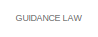
[diagram: root canvas - part 1/5, top left region]
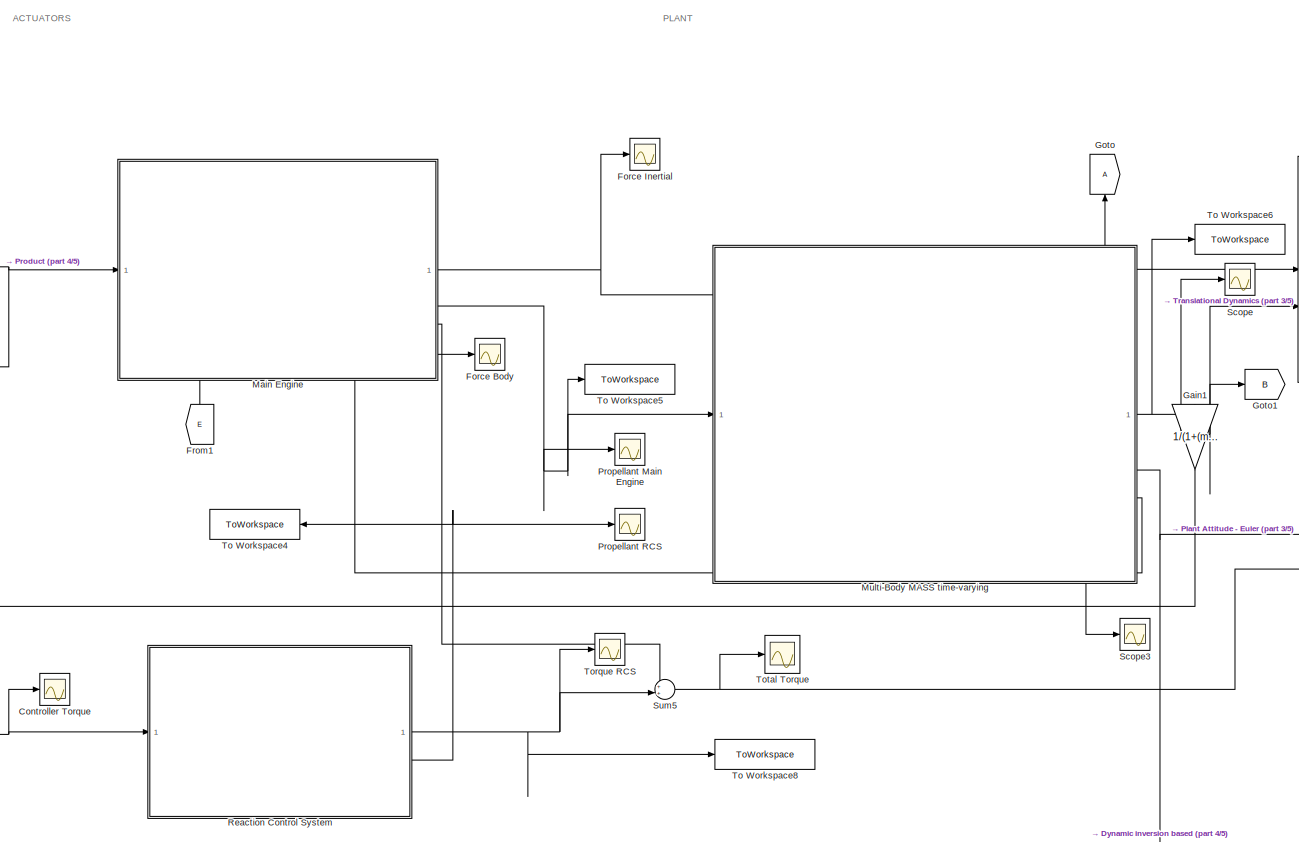
[diagram: root canvas - part 2/5, top center region]
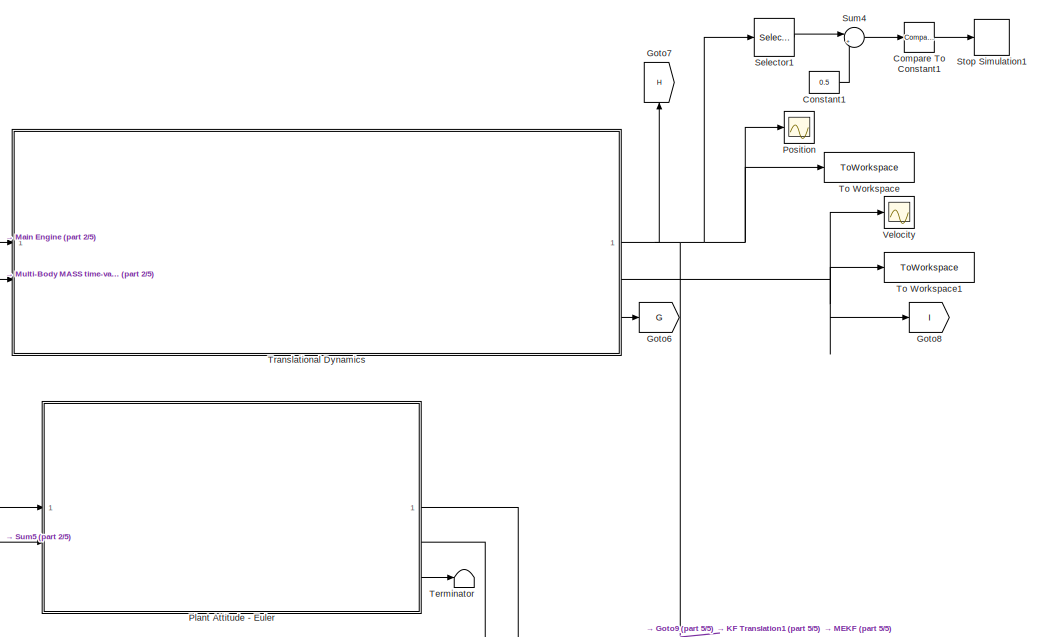
[diagram: root canvas - part 3/5, top right region]
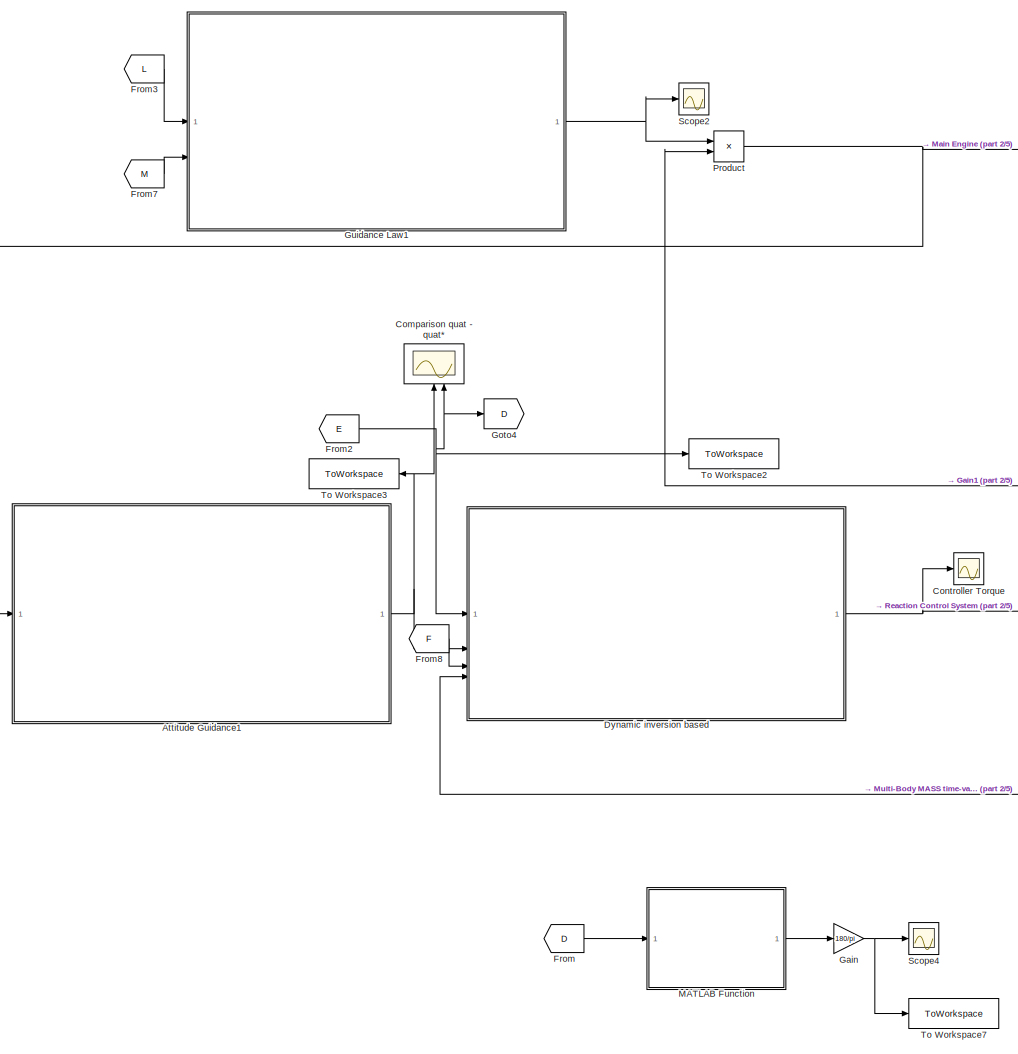
[diagram: root canvas - part 4/5, left side, full height]
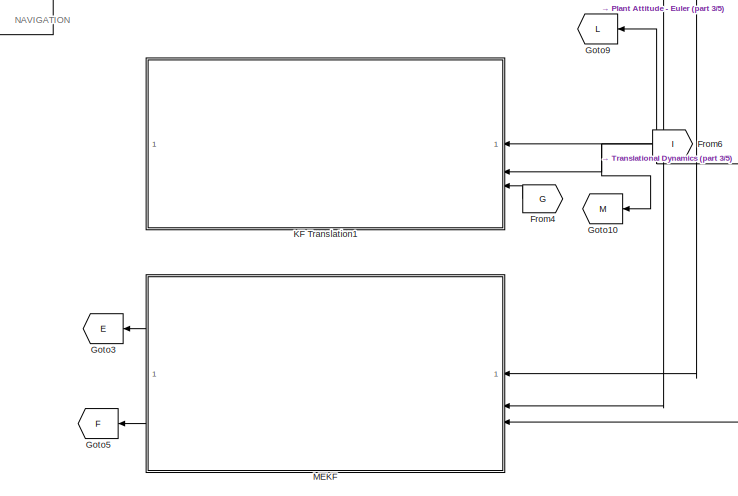
[diagram: root canvas - part 5/5, bottom right region]
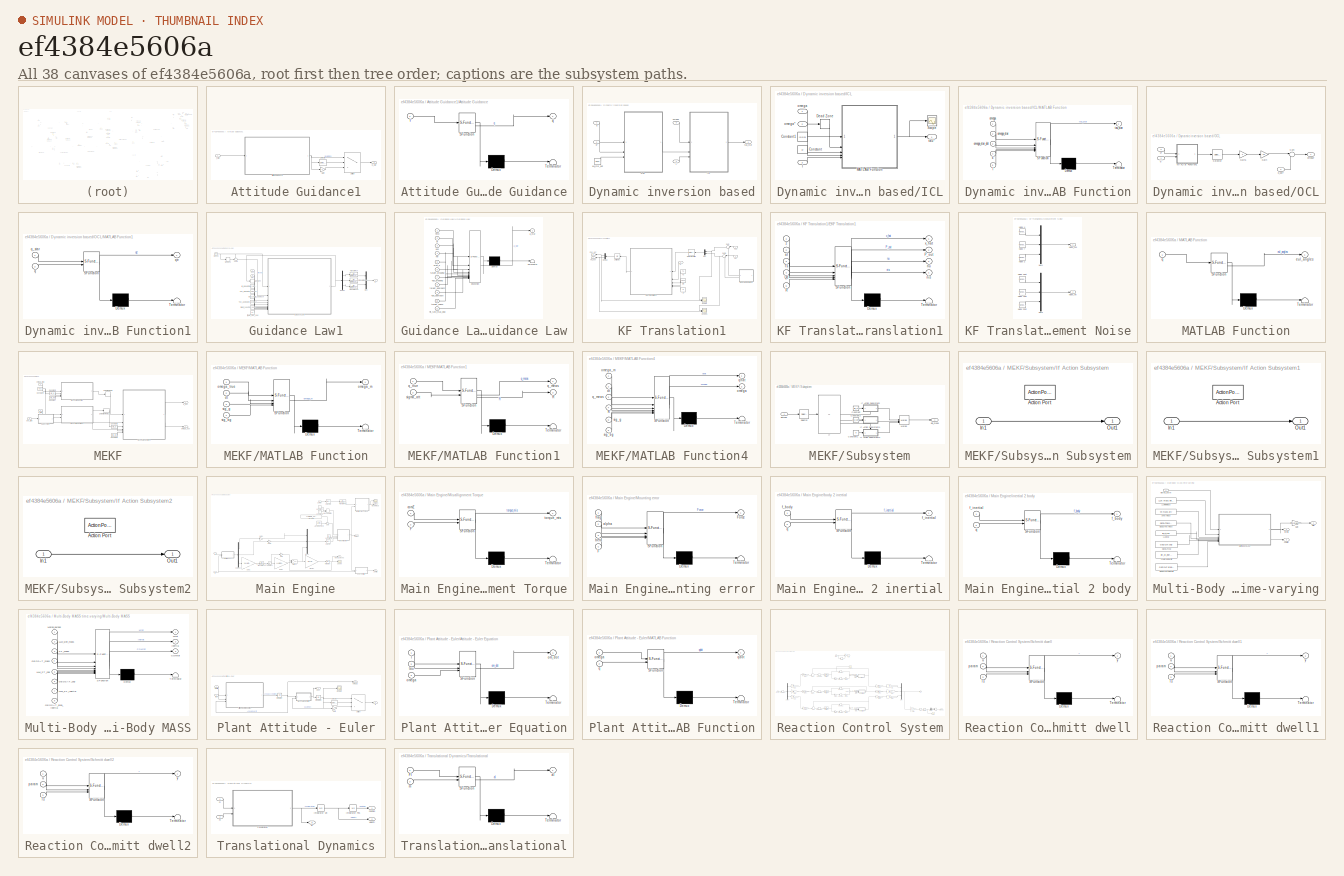
[diagram: thumbnail index - all 38 canvases of the model, root first then tree order]
MODEL slx_ef4384e5606a
KIND model
CONFIG AbsTol = auto
CONFIG EnableMultiTasking = off
CONFIG FixedStep = auto
CONFIG MaxStep = auto
CONFIG MinStep = auto
CONFIG RelTol = 1e-3
CONFIG SampleTimeConstraint = Unconstrained
CONFIG SolverName = ode4
CONFIG StartTime = 0.0
CONFIG StopTime = 1000
BLOCK [SubSystem] Attitude Guidance1
BLOCK [SubSystem] Attitude Guidance1/Attitude Guidance
  ErrorFcn = Stateflow.Translate.translate
  PermitHierarchicalResolution = ExplicitOnly
  SFBlockType = MATLAB Function
  TreatAsAtomicUnit = on
BLOCK [Demux] Attitude Guidance1/Attitude Guidance/ Demux 
  Outputs = 1
BLOCK [S-Function] Attitude Guidance1/Attitude Guidance/ SFunction 
  EnableBusSupport = on
  FunctionName = sf_sfun
  PortCounts = [1 2]
  SFcnIsStateOwnerBlock = off
  SFunctionDeploymentMode = off
  Tag = Stateflow S-Function 19
BLOCK [Terminator] Attitude Guidance1/Attitude Guidance/ Terminator 
BLOCK [Inport] Attitude Guidance1/Attitude Guidance/f
BLOCK [Outport] Attitude Guidance1/Attitude Guidance/q
BLOCK [Gain] Attitude Guidance1/Gain
  Gain = -1
BLOCK [Selector] Attitude Guidance1/Selector
  IndexOptions = Index vector (dialog)
  Indices = 1
  InputPortWidth = 4
  OutputSizes = 1
BLOCK [Switch] Attitude Guidance1/Switch
  Criteria = u2 > Threshold
  InputSameDT = off
  SaturateOnIntegerOverflow = off
BLOCK [Inport] Attitude Guidance1/f_star
BLOCK [Outport] Attitude Guidance1/q_star
BLOCK [Reference] Compare To Constant1  REF=simulink/Logic and Bit
Operations/Compare
To Constant
  SourceBlock = simulink/Logic and Bit\nOperations/Compare\nTo Constant
  SourceType = Compare To Constant
BLOCK [Scope] Comparison quat - quat*
  Floating = off
  NameLocation = right
  NumInputPorts = 2
  ScopeSpecificationString = Simulink.scopes.TimeScopeBlockCfg('CurrentConfiguration', extmgr.ConfigurationSet(extmgr.Configuration('Core','General UI',true,'FigureColor',[1 1 1]),extmgr.Configuration('Core','Source UI',true),extmgr.Configuration('Sources','WiredSimulink',true,'DataLoggingVariableName','ScopeData1'),extmgr.Configuration('Visuals','Time Domain',true,'SerializedDisplays',{struct('MinYLimReal','-0.93333','MaxYLi...<+2563ch>
BLOCK [Constant] Constant1
  Value = 0.5
BLOCK [Scope] Controller Torque
  Floating = off
  NumInputPorts = 1
  ScopeSpecificationString = Simulink.scopes.TimeScopeBlockCfg('CurrentConfiguration', extmgr.ConfigurationSet(extmgr.Configuration('Core','General UI',true),extmgr.Configuration('Core','Source UI',true),extmgr.Configuration('Sources','WiredSimulink',true,'DataLoggingVariableName','ScopeData6'),extmgr.Configuration('Visuals','Time Domain',true,'SerializedDisplays',{struct('MinYLimReal','-667344.03683','MaxYLimReal','985545.59...<+1679ch>
BLOCK [SubSystem] Dynamic inversion based
BLOCK [Inport] Dynamic inversion based/I
  Port = 4
  PortDimensions = [3,3]
BLOCK [SubSystem] Dynamic inversion based/ICL
  TreatAsAtomicUnit = on
BLOCK [Constant] Dynamic inversion based/ICL/Constant
  Value = kr
BLOCK [Constant] Dynamic inversion based/ICL/Constant1
  Value = [0;0;0]
BLOCK [DeadZone] Dynamic inversion based/ICL/Dead Zone
  LowerValue = -db_omega
  UpperValue = db_omega
BLOCK [Inport] Dynamic inversion based/ICL/I
  Port = 3
BLOCK [SubSystem] Dynamic inversion based/ICL/MATLAB Function
  ErrorFcn = Stateflow.Translate.translate
  PermitHierarchicalResolution = ExplicitOnly
  SFBlockType = MATLAB Function
  TreatAsAtomicUnit = on
BLOCK [Demux] Dynamic inversion based/ICL/MATLAB Function/ Demux 
  Outputs = 1
BLOCK [S-Function] Dynamic inversion based/ICL/MATLAB Function/ SFunction 
  EnableBusSupport = on
  FunctionName = sf_sfun
  PortCounts = [5 2]
  SFcnIsStateOwnerBlock = off
  SFunctionDeploymentMode = off
  Tag = Stateflow S-Function 20
BLOCK [Terminator] Dynamic inversion based/ICL/MATLAB Function/ Terminator 
BLOCK [Inport] Dynamic inversion based/ICL/MATLAB Function/I
  Port = 5
BLOCK [Inport] Dynamic inversion based/ICL/MATLAB Function/k
  Port = 4
BLOCK [Inport] Dynamic inversion based/ICL/MATLAB Function/omega
BLOCK [Inport] Dynamic inversion based/ICL/MATLAB Function/omega_star
  Port = 2
BLOCK [Inport] Dynamic inversion based/ICL/MATLAB Function/omega_star_dot
  Port = 3
BLOCK [Outport] Dynamic inversion based/ICL/MATLAB Function/tau_star
BLOCK [Scope] Dynamic inversion based/ICL/Scope
  Floating = off
  NumInputPorts = 1
  ScopeSpecificationString = Simulink.scopes.TimeScopeBlockCfg('CurrentConfiguration', extmgr.ConfigurationSet(extmgr.Configuration('Core','General UI',true),extmgr.Configuration('Core','Source UI',true),extmgr.Configuration('Sources','WiredSimulink',true,'DataLoggingVariableName','ScopeData4'),extmgr.Configuration('Visuals','Time Domain',true,'SerializedDisplays',{struct('MinYLimReal','-0.34522','MaxYLimReal','0.21951','YLab...<+1505ch>
BLOCK [Inport] Dynamic inversion based/ICL/omega
BLOCK [Inport] Dynamic inversion based/ICL/omega*
  Port = 2
BLOCK [Outport] Dynamic inversion based/ICL/tau*
  NameLocation = right
BLOCK [SubSystem] Dynamic inversion based/OCL
  TreatAsAtomicUnit = on
BLOCK [Gain] Dynamic inversion based/OCL/Gain
  Gain = ka
BLOCK [Gain] Dynamic inversion based/OCL/Gain1
  Gain = 2
BLOCK [SubSystem] Dynamic inversion based/OCL/MATLAB Function1
  ErrorFcn = Stateflow.Translate.translate
  PermitHierarchicalResolution = ExplicitOnly
  SFBlockType = MATLAB Function
  TreatAsAtomicUnit = on
BLOCK [Demux] Dynamic inversion based/OCL/MATLAB Function1/ Demux 
  Outputs = 1
BLOCK [S-Function] Dynamic inversion based/OCL/MATLAB Function1/ SFunction 
  EnableBusSupport = on
  FunctionName = sf_sfun
  PortCounts = [2 2]
  SFcnIsStateOwnerBlock = off
  SFunctionDeploymentMode = off
  Tag = Stateflow S-Function 22
BLOCK [Terminator] Dynamic inversion based/OCL/MATLAB Function1/ Terminator 
BLOCK [Inport] Dynamic inversion based/OCL/MATLAB Function1/q
  Port = 2
BLOCK [Inport] Dynamic inversion based/OCL/MATLAB Function1/q_star
BLOCK [Outport] Dynamic inversion based/OCL/MATLAB Function1/qe
BLOCK [Selector] Dynamic inversion based/OCL/Selector
  IndexOptions = Index vector (dialog)
  Indices = 2:4
  InputPortWidth = 4
  OutputSizes = 1
BLOCK [Sum] Dynamic inversion based/OCL/Sum
  Inputs = |-+
BLOCK [Inport] Dynamic inversion based/OCL/e_dot*
  Port = 3
BLOCK [Outport] Dynamic inversion based/OCL/omega*
BLOCK [Inport] Dynamic inversion based/OCL/q
BLOCK [Inport] Dynamic inversion based/OCL/q*
  Port = 2
BLOCK [Constant] Dynamic inversion based/eul_star_dot
  Value = [0;0;0]
BLOCK [Inport] Dynamic inversion based/omega
  Port = 3
BLOCK [Inport] Dynamic inversion based/q
BLOCK [Inport] Dynamic inversion based/q*
  Port = 2
BLOCK [Outport] Dynamic inversion based/tau_star
BLOCK [Scope] Force Body
  Floating = off
  NumInputPorts = 1
  ScopeSpecificationString = Simulink.scopes.TimeScopeBlockCfg('CurrentConfiguration', extmgr.ConfigurationSet(extmgr.Configuration('Core','General UI',true),extmgr.Configuration('Core','Source UI',true),extmgr.Configuration('Sources','WiredSimulink',true,'DataLoggingVariableName','ScopeData1'),extmgr.Configuration('Visuals','Time Domain',true,'SerializedDisplays',{struct('MinYLimReal','-15204.44937','MaxYLimReal','136840.044...<+1589ch>
BLOCK [Scope] Force Inertial
  Floating = off
  NumInputPorts = 1
  ScopeSpecificationString = Simulink.scopes.TimeScopeBlockCfg('CurrentConfiguration', extmgr.ConfigurationSet(extmgr.Configuration('Core','General UI',true),extmgr.Configuration('Core','Source UI',true),extmgr.Configuration('Sources','WiredSimulink',true,'DataLoggingVariableName','ScopeData3'),extmgr.Configuration('Visuals','Time Domain',true,'SerializedDisplays',{struct('MinYLimReal','-19978.07787','MaxYLimReal','137378.745...<+1705ch>
BLOCK [From] From
  GotoTag = D
BLOCK [From] From1
  GotoTag = E
  NameLocation = right
BLOCK [From] From2
  GotoTag = E
BLOCK [From] From3
  GotoTag = L
BLOCK [From] From4
  GotoTag = G
  NameLocation = top
BLOCK [From] From6
  GotoTag = I
  NameLocation = top
BLOCK [From] From7
  GotoTag = M
BLOCK [From] From8
  GotoTag = F
BLOCK [Gain] Gain
  Gain = 180/pi
BLOCK [Gain] Gain1
  Gain = 1/(1+(mass_err_perc/100))
  NameLocation = left
BLOCK [Goto] Goto
  NameLocation = right
BLOCK [Goto] Goto1
  GotoTag = B
BLOCK [Goto] Goto10
  GotoTag = M
  NameLocation = top
BLOCK [Goto] Goto3
  GotoTag = E
  NameLocation = top
BLOCK [Goto] Goto4
  GotoTag = D
BLOCK [Goto] Goto5
  GotoTag = F
  NameLocation = top
BLOCK [Goto] Goto6
  GotoTag = G
BLOCK [Goto] Goto7
  GotoTag = H
  NameLocation = right
BLOCK [Goto] Goto8
  GotoTag = I
BLOCK [Goto] Goto9
  GotoTag = L
  NameLocation = top
BLOCK [SubSystem] Guidance Law1
  NameLocation = top
BLOCK [Constant] Guidance Law1/(r,v)_approach
  NameLocation = left
  Value = target_approach
BLOCK [Constant] Guidance Law1/(r,v)_breaking
  NameLocation = left
  Value = target_breaking
BLOCK [Clock] Guidance Law1/Clock2
BLOCK [Demux] Guidance Law1/Demux
  Outputs = 3
BLOCK [SubSystem] Guidance Law1/Guidance Law
  ErrorFcn = Stateflow.Translate.translate
  PermitHierarchicalResolution = ExplicitOnly
  SFBlockType = MATLAB Function
  TreatAsAtomicUnit = on
BLOCK [Demux] Guidance Law1/Guidance Law/ Demux 
  Outputs = 1
BLOCK [S-Function] Guidance Law1/Guidance Law/ SFunction 
  EnableBusSupport = on
  FunctionName = sf_sfun
  PortCounts = [11 2]
  SFcnIsStateOwnerBlock = off
  SFunctionDeploymentMode = off
  Tag = Stateflow S-Function 16
BLOCK [Terminator] Guidance Law1/Guidance Law/ Terminator 
BLOCK [Inport] Guidance Law1/Guidance Law/Tgo_approach
  Port = 9
BLOCK [Inport] Guidance Law1/Guidance Law/Tgo_breaking
  Port = 7
BLOCK [Outport] Guidance Law1/Guidance Law/a_star
BLOCK [Inport] Guidance Law1/Guidance Law/dt
  Port = 2
BLOCK [Inport] Guidance Law1/Guidance Law/pos
  Port = 3
BLOCK [Inport] Guidance Law1/Guidance Law/prev_a
  Port = 5
BLOCK [Inport] Guidance Law1/Guidance Law/target_approach
  Port = 8
BLOCK [Inport] Guidance Law1/Guidance Law/target_breaking
  Port = 6
BLOCK [Inport] Guidance Law1/Guidance Law/target_vdesc
  Port = 10
BLOCK [Inport] Guidance Law1/Guidance Law/tilt_rate_max_deg
  Port = 11
BLOCK [Inport] Guidance Law1/Guidance Law/time
BLOCK [Inport] Guidance Law1/Guidance Law/vel
  Port = 4
BLOCK [Memory] Guidance Law1/Memory3
BLOCK [Memory] Guidance Law1/Memory4
BLOCK [Mux] Guidance Law1/Mux
  DisplayOption = bar
  Inputs = 3
BLOCK [Sum] Guidance Law1/Sum5
  Inputs = +-|
BLOCK [Constant] Guidance Law1/Tgo_approach
  NameLocation = left
  Value = tgo_approach
BLOCK [Constant] Guidance Law1/Tgo_breaking
  NameLocation = left
  Value = tgo_breaking
BLOCK [TransferFcn] Guidance Law1/Transfer Fcn
  Denominator = [1/(2*pi*f_cut) 1]
BLOCK [TransferFcn] Guidance Law1/Transfer Fcn1
  Denominator = [1/(2*pi*f_cut) 1]
BLOCK [TransferFcn] Guidance Law1/Transfer Fcn2
  Denominator = [1/(2*pi*f_cut) 1]
BLOCK [Outport] Guidance Law1/a*
  PortDimensions = [3,1]
BLOCK [Inport] Guidance Law1/pos
BLOCK [Constant] Guidance Law1/target_vdesc
  NameLocation = left
  Value = target_vdesc
BLOCK [Constant] Guidance Law1/tilt_rate_max_deg
  Value = 2.2
BLOCK [Inport] Guidance Law1/vel
  Port = 2
BLOCK [SubSystem] KF Translation1
  NameLocation = top
BLOCK [Demux] KF Translation1/Demux
  NameLocation = top
  Outputs = 2
BLOCK [SubSystem] KF Translation1/EKF Translation1
  ErrorFcn = Stateflow.Translate.translate
  NameLocation = top
  PermitHierarchicalResolution = ExplicitOnly
  SFBlockType = MATLAB Function
  TreatAsAtomicUnit = on
BLOCK [Demux] KF Translation1/EKF Translation1/ Demux 
  Outputs = 1
BLOCK [S-Function] KF Translation1/EKF Translation1/ SFunction 
  EnableBusSupport = on
  FunctionName = sf_sfun
  PortCounts = [5 5]
  SFcnIsStateOwnerBlock = off
  SFunctionDeploymentMode = off
  Tag = Stateflow S-Function 13
BLOCK [Terminator] KF Translation1/EKF Translation1/ Terminator 
BLOCK [Outport] KF Translation1/EKF Translation1/P_out
  Port = 2
BLOCK [Inport] KF Translation1/EKF Translation1/Qd
  Port = 4
BLOCK [Inport] KF Translation1/EKF Translation1/R
  Port = 5
BLOCK [Inport] KF Translation1/EKF Translation1/Ts
  Port = 3
BLOCK [Inport] KF Translation1/EKF Translation1/aI
  Port = 2
BLOCK [Outport] KF Translation1/EKF Translation1/nis
  Port = 4
BLOCK [Outport] KF Translation1/EKF Translation1/nu
  Port = 3
BLOCK [Outport] KF Translation1/EKF Translation1/x_hat
BLOCK [Inport] KF Translation1/EKF Translation1/z
BLOCK [SubSystem] KF Translation1/Measurement Noise
  NameLocation = top
BLOCK [RandomNumber] KF Translation1/Measurement Noise/ Noise X
  SampleTime = 1/f_plant
  Seed = 1
  Variance = sigma_pos^2
BLOCK [RandomNumber] KF Translation1/Measurement Noise/ Noise Xdot
  SampleTime = 1/f_plant
  Seed = 1
  Variance = sigma_vel^2
BLOCK [Mux] KF Translation1/Measurement Noise/Mux1
  DisplayOption = bar
  Inputs = 3
BLOCK [Mux] KF Translation1/Measurement Noise/Mux3
  DisplayOption = bar
  Inputs = 3
BLOCK [RandomNumber] KF Translation1/Measurement Noise/Noise Y
  SampleTime = 1/f_plant
  Seed = 2
  Variance = sigma_pos^2
BLOCK [RandomNumber] KF Translation1/Measurement Noise/Noise Ydot
  SampleTime = 1/f_plant
  Seed = 2
  Variance = sigma_vel^2
BLOCK [RandomNumber] KF Translation1/Measurement Noise/Noise Z
  SampleTime = 1/f_plant
  Seed = 3
  Variance = sigma_pos^2
BLOCK [RandomNumber] KF Translation1/Measurement Noise/Noise Zdot
  SampleTime = 1/f_plant
  Seed = 3
  Variance = sigma_vel^2
BLOCK [Outport] KF Translation1/Measurement Noise/Noise_Pos
BLOCK [Outport] KF Translation1/Measurement Noise/Noise_Vel
  Port = 2
BLOCK [Mux] KF Translation1/Mux
  DisplayOption = bar
  Inputs = 2
  NameLocation = top
BLOCK [Inport] KF Translation1/Pos
BLOCK [Outport] KF Translation1/Pos_est
  NameLocation = top
BLOCK [Constant] KF Translation1/Qa
  NameLocation = top
  Value = 0.5e-1
  VectorParams1D = off
BLOCK [Constant] KF Translation1/R
  NameLocation = top
  Value = R
BLOCK [RateTransition] KF Translation1/Rate Transition
  NameLocation = top
  OutPortSampleTime = Ts
BLOCK [Scope] KF Translation1/Scope
  Floating = off
  NumInputPorts = 2
  ScopeSpecificationString = Simulink.scopes.TimeScopeBlockCfg('CurrentConfiguration', extmgr.ConfigurationSet(extmgr.Configuration('Core','General UI',true),extmgr.Configuration('Core','Source UI',true),extmgr.Configuration('Sources','WiredSimulink',true,'DataLoggingVariableName','ScopeData2'),extmgr.Configuration('Visuals','Time Domain',true,'SerializedDisplays',{struct('MinYLimReal','-22.63696','MaxYLimReal','9.52128','YLa...<+1750ch>
BLOCK [Scope] KF Translation1/Scope1
  Floating = off
  NumInputPorts = 2
  ScopeSpecificationString = Simulink.scopes.TimeScopeBlockCfg('CurrentConfiguration', extmgr.ConfigurationSet(extmgr.Configuration('Core','General UI',true),extmgr.Configuration('Core','Source UI',true),extmgr.Configuration('Sources','WiredSimulink',true,'DataLoggingVariableName','ScopeData3'),extmgr.Configuration('Visuals','Time Domain',true,'SerializedDisplays',{struct('MinYLimReal','-0.55922','MaxYLimReal','0.25856','YLab...<+1724ch>
BLOCK [Sum] KF Translation1/Sum
  Inputs = |++
  NameLocation = top
BLOCK [Sum] KF Translation1/Sum1
  Inputs = |++
  NameLocation = top
BLOCK [Constant] KF Translation1/Ts
  NameLocation = top
  Value = Ts
BLOCK [UnitDelay] KF Translation1/Unit Delay
  HasFrameUpgradeWarning = on
  NameLocation = top
  SampleTime = Ts
BLOCK [Inport] KF Translation1/Vel
  NameLocation = top
  Port = 2
BLOCK [Outport] KF Translation1/Vel_est
  Port = 2
BLOCK [Inport] KF Translation1/aI
  NameLocation = top
  Port = 3
BLOCK [SubSystem] MATLAB Function
  ErrorFcn = Stateflow.Translate.translate
  PermitHierarchicalResolution = ExplicitOnly
  SFBlockType = MATLAB Function
  TreatAsAtomicUnit = on
BLOCK [Demux] MATLAB Function/ Demux 
  Outputs = 1
BLOCK [S-Function] MATLAB Function/ SFunction 
  EnableBusSupport = on
  FunctionName = sf_sfun
  PortCounts = [1 2]
  SFcnIsStateOwnerBlock = off
  SFunctionDeploymentMode = off
  Tag = Stateflow S-Function 3
BLOCK [Terminator] MATLAB Function/ Terminator 
BLOCK [Outport] MATLAB Function/eul_angles
BLOCK [Inport] MATLAB Function/q
BLOCK [SubSystem] MEKF
  NameLocation = top
BLOCK [Constant] MEKF/Constant
  Value = sig_bg
BLOCK [Constant] MEKF/Constant1
  Value = sig_g
BLOCK [Constant] MEKF/Constant2
  Value = sig_bg
BLOCK [Constant] MEKF/Constant3
  Value = sig_g
BLOCK [Constant] MEKF/Constant4
  Value = 0.01
BLOCK [SubSystem] MEKF/MATLAB Function
  ErrorFcn = Stateflow.Translate.translate
  NameLocation = top
  PermitHierarchicalResolution = ExplicitOnly
  SFBlockType = MATLAB Function
  TreatAsAtomicUnit = on
BLOCK [Demux] MEKF/MATLAB Function/ Demux 
  Outputs = 1
BLOCK [S-Function] MEKF/MATLAB Function/ SFunction 
  EnableBusSupport = on
  FunctionName = sf_sfun
  PortCounts = [4 2]
  SFcnIsStateOwnerBlock = off
  SFunctionDeploymentMode = off
  Tag = Stateflow S-Function 25
BLOCK [Terminator] MEKF/MATLAB Function/ Terminator 
BLOCK [Inport] MEKF/MATLAB Function/dt
  Port = 2
BLOCK [Outport] MEKF/MATLAB Function/omega_m
BLOCK [Inport] MEKF/MATLAB Function/omega_true
BLOCK [Inport] MEKF/MATLAB Function/sig_bg
  Port = 4
BLOCK [Inport] MEKF/MATLAB Function/sig_g
  Port = 3
BLOCK [SubSystem] MEKF/MATLAB Function1
  ErrorFcn = Stateflow.Translate.translate
  PermitHierarchicalResolution = ExplicitOnly
  SFBlockType = MATLAB Function
  TreatAsAtomicUnit = on
BLOCK [Demux] MEKF/MATLAB Function1/ Demux 
  Outputs = 1
BLOCK [S-Function] MEKF/MATLAB Function1/ SFunction 
  EnableBusSupport = on
  FunctionName = sf_sfun
  PortCounts = [2 3]
  SFcnIsStateOwnerBlock = off
  SFunctionDeploymentMode = off
  Tag = Stateflow S-Function 26
BLOCK [Terminator] MEKF/MATLAB Function1/ Terminator 
BLOCK [Outport] MEKF/MATLAB Function1/R
  Port = 2
BLOCK [Outport] MEKF/MATLAB Function1/q_meas
BLOCK [Inport] MEKF/MATLAB Function1/q_true
BLOCK [Inport] MEKF/MATLAB Function1/sigma_att
  Port = 2
BLOCK [SubSystem] MEKF/MATLAB Function4
  ErrorFcn = Stateflow.Translate.translate
  PermitHierarchicalResolution = ExplicitOnly
  SFBlockType = MATLAB Function
  TreatAsAtomicUnit = on
BLOCK [Demux] MEKF/MATLAB Function4/ Demux 
  Outputs = 1
BLOCK [S-Function] MEKF/MATLAB Function4/ SFunction 
  EnableBusSupport = on
  FunctionName = sf_sfun
  PortCounts = [6 3]
  SFcnIsStateOwnerBlock = off
  SFunctionDeploymentMode = off
  Tag = Stateflow S-Function 27
BLOCK [Terminator] MEKF/MATLAB Function4/ Terminator 
BLOCK [Inport] MEKF/MATLAB Function4/R
  Port = 4
BLOCK [Inport] MEKF/MATLAB Function4/dt
  Port = 2
BLOCK [Outport] MEKF/MATLAB Function4/omega
  Port = 2
BLOCK [Inport] MEKF/MATLAB Function4/omega_m
BLOCK [Inport] MEKF/MATLAB Function4/q_meas
  Port = 3
BLOCK [Outport] MEKF/MATLAB Function4/qhat
BLOCK [Inport] MEKF/MATLAB Function4/sig_bg
  Port = 6
BLOCK [Inport] MEKF/MATLAB Function4/sig_g
  Port = 5
BLOCK [SubSystem] MEKF/Subsystem
BLOCK [Constant] MEKF/Subsystem/Constant
  Value = sig_st
BLOCK [Constant] MEKF/Subsystem/Constant1
  Value = 0
BLOCK [Constant] MEKF/Subsystem/Constant2
  Value = sig_cam
BLOCK [If] MEKF/Subsystem/If
  ElseIfExpressions = u1 < z1_t
  IfExpression = u1 > z1_t
BLOCK [SubSystem] MEKF/Subsystem/If Action Subsystem
  TreatAsAtomicUnit = on
BLOCK [ActionPort] MEKF/Subsystem/If Action Subsystem/Action Port
  ActionPortLabel = if(u1 > z1_t)
BLOCK [Inport] MEKF/Subsystem/If Action Subsystem/In1
BLOCK [Outport] MEKF/Subsystem/If Action Subsystem/Out1
BLOCK [SubSystem] MEKF/Subsystem/If Action Subsystem1
  TreatAsAtomicUnit = on
BLOCK [ActionPort] MEKF/Subsystem/If Action Subsystem1/Action Port
  ActionPortLabel = elseif(u1 < z1_t)
BLOCK [Inport] MEKF/Subsystem/If Action Subsystem1/In1
BLOCK [Outport] MEKF/Subsystem/If Action Subsystem1/Out1
BLOCK [SubSystem] MEKF/Subsystem/If Action Subsystem2
  TreatAsAtomicUnit = on
BLOCK [ActionPort] MEKF/Subsystem/If Action Subsystem2/Action Port
  ActionPortLabel = else
BLOCK [Inport] MEKF/Subsystem/If Action Subsystem2/In1
BLOCK [Outport] MEKF/Subsystem/If Action Subsystem2/Out1
BLOCK [Merge] MEKF/Subsystem/Merge
  Inputs = 3
BLOCK [Selector] MEKF/Subsystem/Selector
  IndexOptions = Index vector (dialog)
  Indices = 3
  InputPortWidth = 3
  OutputSizes = 1
BLOCK [Inport] MEKF/Subsystem/altitude
BLOCK [Outport] MEKF/Subsystem/sig_meas
BLOCK [ZeroOrderHold] MEKF/Zero-Order Hold
  SampleTime = 1/f_IMU
BLOCK [ZeroOrderHold] MEKF/Zero-Order Hold1
  SampleTime = 1/f_IMU
BLOCK [Outport] MEKF/omega_est
  Port = 2
BLOCK [Inport] MEKF/omega_true
  NameLocation = top
  Port = 2
BLOCK [Inport] MEKF/pos_true
  NameLocation = top
  Port = 3
BLOCK [Outport] MEKF/q_est
BLOCK [Inport] MEKF/q_true
  NameLocation = top
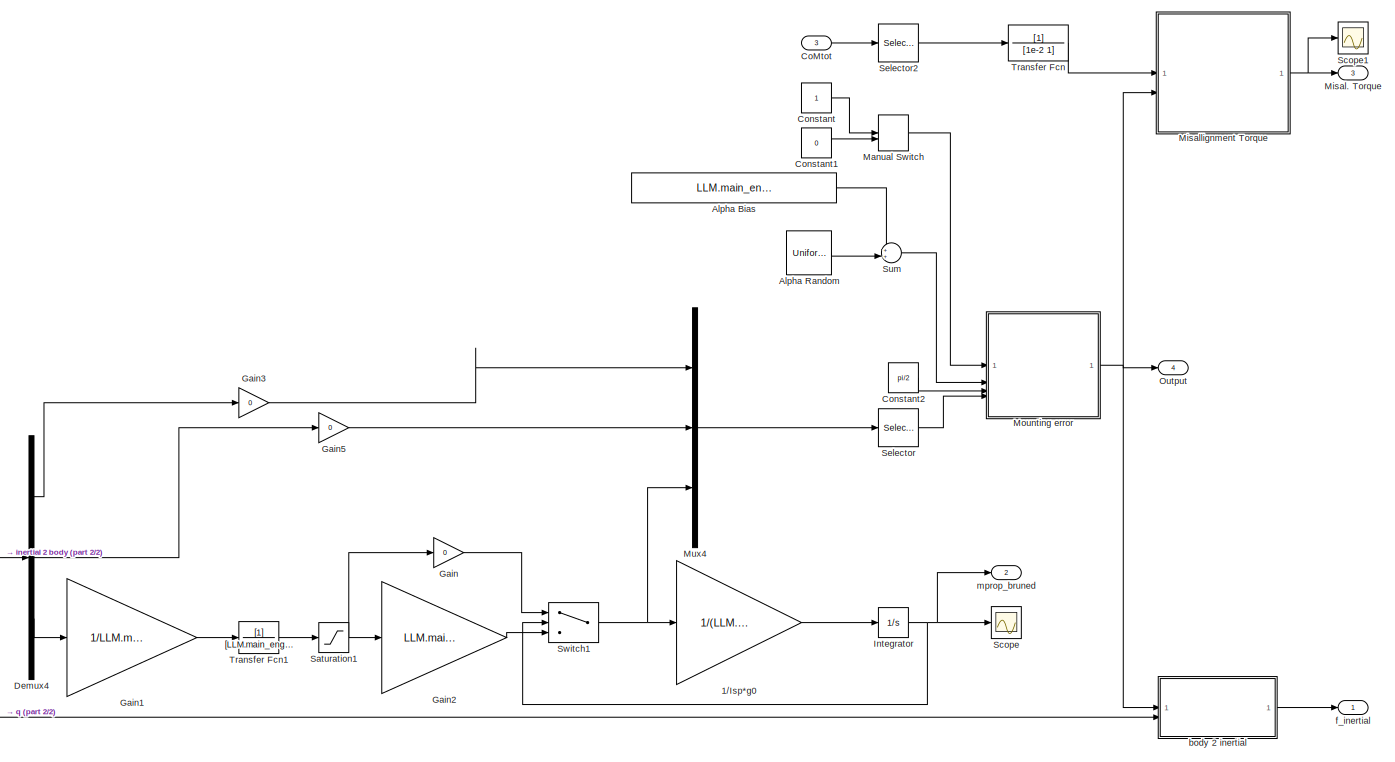
[diagram: Main Engine - part 1/2, most of the canvas]
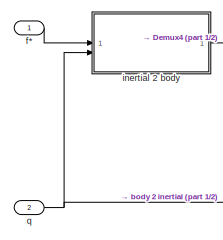
[diagram: Main Engine - part 2/2, bottom left region]
BLOCK [SubSystem] Main Engine
  NameLocation = top
  PortSchema = {"entries":[{"content":{"sides":[{"content":{"connectorIds":["In1"]},"type":"ConnectorPlacement.EquallySpacedRectSide","uuid":"1cd70ed7-fffe-4052-be12-d08ec438809a"},{"content":{"connectorIds":["Out1","Out2","Out3","Out4"],"side":"RIGHT"},"type":"ConnectorPlacement.EquallySpacedRectSide","uuid":"572c642b-d704-4725-a3d6-bfccbd3ff261"},{"content":{"side":"TOP"},"type":"ConnectorPlacement.EquallySpac...<+398ch>
  TreatAsAtomicUnit = on
BLOCK [Gain] Main Engine/1//Isp*g0
  Gain = 1/(LLM.propellant.isp*g0)
BLOCK [Constant] Main Engine/Alpha Bias
  Value = LLM.main_engine.misallignment_offset*pi/180
BLOCK [UniformRandomNumber] Main Engine/Alpha Random
  Maximum = LLM.main_engine.misallignment_alpha*pi/180
  Minimum = -LLM.main_engine.misallignment_alpha*pi/180
  SampleTime = 0.1
BLOCK [Inport] Main Engine/CoMtot
  Port = 3
BLOCK [Constant] Main Engine/Constant
BLOCK [Constant] Main Engine/Constant1
  Value = 0
BLOCK [Constant] Main Engine/Constant2
  Value = pi/2
BLOCK [Demux] Main Engine/Demux4
  Outputs = 3
BLOCK [Gain] Main Engine/Gain
  Gain = 0
BLOCK [Gain] Main Engine/Gain1
  Gain = 1/LLM.main_engine.Fmax
BLOCK [Gain] Main Engine/Gain2
  Gain = LLM.main_engine.Fmax
BLOCK [Gain] Main Engine/Gain3
  Gain = 0
BLOCK [Gain] Main Engine/Gain5
  Gain = 0
BLOCK [Integrator] Main Engine/Integrator
  LimitOutput = on
  LowerSaturationLimit = 0
  UpperSaturationLimit = 1.20*LLM.propellant.mass
BLOCK [ManualSwitch] Main Engine/Manual Switch
  CurrentSetting = 0
BLOCK [Outport] Main Engine/Misal. Torque
  Port = 3
BLOCK [SubSystem] Main Engine/Misallignment Torque
  ErrorFcn = Stateflow.Translate.translate
  PermitHierarchicalResolution = ExplicitOnly
  SFBlockType = MATLAB Function
  TreatAsAtomicUnit = on
BLOCK [Demux] Main Engine/Misallignment Torque/ Demux 
  Outputs = 1
BLOCK [S-Function] Main Engine/Misallignment Torque/ SFunction 
  EnableBusSupport = on
  FunctionName = sf_sfun
  PortCounts = [2 2]
  SFcnIsStateOwnerBlock = off
  SFunctionDeploymentMode = off
  Tag = Stateflow S-Function 10
BLOCK [Terminator] Main Engine/Misallignment Torque/ Terminator 
BLOCK [Inport] Main Engine/Misallignment Torque/F
  Port = 2
BLOCK [Inport] Main Engine/Misallignment Torque/comZ
BLOCK [Outport] Main Engine/Misallignment Torque/torque_mis
BLOCK [SubSystem] Main Engine/Mounting error
  ErrorFcn = Stateflow.Translate.translate
  PermitHierarchicalResolution = ExplicitOnly
  SFBlockType = MATLAB Function
  TreatAsAtomicUnit = on
BLOCK [Demux] Main Engine/Mounting error/ Demux 
  Outputs = 1
BLOCK [S-Function] Main Engine/Mounting error/ SFunction 
  EnableBusSupport = on
  FunctionName = sf_sfun
  PortCounts = [4 2]
  SFcnIsStateOwnerBlock = off
  SFunctionDeploymentMode = off
  Tag = Stateflow S-Function 12
BLOCK [Terminator] Main Engine/Mounting error/ Terminator 
BLOCK [Inport] Main Engine/Mounting error/F
  Port = 4
BLOCK [Outport] Main Engine/Mounting error/Force
BLOCK [Inport] Main Engine/Mounting error/alpha
  Port = 2
BLOCK [Inport] Main Engine/Mounting error/beta
  Port = 3
BLOCK [Inport] Main Engine/Mounting error/flag
BLOCK [Mux] Main Engine/Mux4
  DisplayOption = bar
  Inputs = 3
BLOCK [Outport] Main Engine/Output
  Port = 4
BLOCK [Saturate] Main Engine/Saturation1
  LowerLimit = -1
  UpperLimit = 1
BLOCK [Scope] Main Engine/Scope
  Floating = off
  NumInputPorts = 1
  ScopeSpecificationString = Simulink.scopes.TimeScopeBlockCfg('CurrentConfiguration', extmgr.ConfigurationSet(extmgr.Configuration('Core','General UI',true),extmgr.Configuration('Core','Source UI',true),extmgr.Configuration('Sources','WiredSimulink',true,'DataLoggingVariableName','ScopeData3'),extmgr.Configuration('Visuals','Time Domain',true,'SerializedDisplays',{struct('MinYLimReal','-852.59417','MaxYLimReal','7673.34753',...<+1501ch>
BLOCK [Scope] Main Engine/Scope1
  Floating = off
  NumInputPorts = 1
  ScopeSpecificationString = Simulink.scopes.TimeScopeBlockCfg('CurrentConfiguration', extmgr.ConfigurationSet(extmgr.Configuration('Core','General UI',true),extmgr.Configuration('Core','Source UI',true),extmgr.Configuration('Sources','WiredSimulink',true,'DataLoggingVariableName','ScopeData4'),extmgr.Configuration('Visuals','Time Domain',true,'SerializedDisplays',{struct('MinYLimReal','-4496.43991','MaxYLimReal','506.67605',...<+1680ch>
BLOCK [Selector] Main Engine/Selector
  IndexOptions = Index vector (dialog)
  Indices = [3]
  InputPortWidth = 3
  OutputSizes = 1
BLOCK [Selector] Main Engine/Selector2
  IndexOptions = Index vector (dialog)
  Indices = [3]
  InputPortWidth = 3
  OutputSizes = 1
BLOCK [Sum] Main Engine/Sum
  Inputs = ++|
BLOCK [Switch] Main Engine/Switch1
  Criteria = u2 > Threshold
  InputSameDT = off
  SaturateOnIntegerOverflow = off
  Threshold = 0.99*LLM.propellant.mass
BLOCK [TransferFcn] Main Engine/Transfer Fcn
  Denominator = [1e-2 1]
BLOCK [TransferFcn] Main Engine/Transfer Fcn1
  Denominator = [LLM.main_engine.tau 1]
BLOCK [SubSystem] Main Engine/body 2 inertial
  ErrorFcn = Stateflow.Translate.translate
  PermitHierarchicalResolution = ExplicitOnly
  SFBlockType = MATLAB Function
  TreatAsAtomicUnit = on
BLOCK [Demux] Main Engine/body 2 inertial/ Demux 
  Outputs = 1
BLOCK [S-Function] Main Engine/body 2 inertial/ SFunction 
  EnableBusSupport = on
  FunctionName = sf_sfun
  PortCounts = [2 2]
  SFcnIsStateOwnerBlock = off
  SFunctionDeploymentMode = off
  Tag = Stateflow S-Function 17
BLOCK [Terminator] Main Engine/body 2 inertial/ Terminator 
BLOCK [Inport] Main Engine/body 2 inertial/f_body
BLOCK [Outport] Main Engine/body 2 inertial/f_inertial
BLOCK [Inport] Main Engine/body 2 inertial/q
  Port = 2
BLOCK [Inport] Main Engine/f*
BLOCK [Outport] Main Engine/f_inertial
BLOCK [SubSystem] Main Engine/inertial 2 body
  ErrorFcn = Stateflow.Translate.translate
  PermitHierarchicalResolution = ExplicitOnly
  SFBlockType = MATLAB Function
  TreatAsAtomicUnit = on
BLOCK [Demux] Main Engine/inertial 2 body/ Demux 
  Outputs = 1
BLOCK [S-Function] Main Engine/inertial 2 body/ SFunction 
  EnableBusSupport = on
  FunctionName = sf_sfun
  PortCounts = [2 2]
  SFcnIsStateOwnerBlock = off
  SFunctionDeploymentMode = off
  Tag = Stateflow S-Function 18
BLOCK [Terminator] Main Engine/inertial 2 body/ Terminator 
BLOCK [Outport] Main Engine/inertial 2 body/f_body
BLOCK [Inport] Main Engine/inertial 2 body/f_inertial
BLOCK [Inport] Main Engine/inertial 2 body/q
  Port = 2
BLOCK [Outport] Main Engine/mprop_bruned
  Port = 2
BLOCK [Inport] Main Engine/q
  Port = 2
BLOCK [SubSystem] Multi-Body MASS time-varying
BLOCK [Outport] Multi-Body MASS time-varying/CoMtot
  Port = 3
BLOCK [Constant] Multi-Body MASS time-varying/GEOSAT area inertia
  Value = GEOSAT.area_inertia
BLOCK [Constant] Multi-Body MASS time-varying/GEOSAT cog
  Value = GEOSAT.cog
BLOCK [Constant] Multi-Body MASS time-varying/GEOSAT dry mass
  Value = GEOSAT.mass.dry
BLOCK [Gain] Multi-Body MASS time-varying/Gain
  Commented = through
  Gain = 1+(mass_err_perc/100)
BLOCK [Outport] Multi-Body MASS time-varying/Inertia
  Port = 2
BLOCK [Constant] Multi-Body MASS time-varying/LLM area inertia
  Value = llm_st_inertia_box
BLOCK [Constant] Multi-Body MASS time-varying/LLM cog
  Value = llm_st_cog
BLOCK [Constant] Multi-Body MASS time-varying/LLM wet mass
  Value = LLM.mass.wet_descent
BLOCK [Inport] Multi-Body MASS time-varying/Mprop_burnt
BLOCK [Outport] Multi-Body MASS time-varying/Mtot
BLOCK [SubSystem] Multi-Body MASS time-varying/Multi-Body MASS
  ErrorFcn = Stateflow.Translate.translate
  PermitHierarchicalResolution = ExplicitOnly
  SFBlockType = MATLAB Function
  TreatAsAtomicUnit = on
BLOCK [Demux] Multi-Body MASS time-varying/Multi-Body MASS/ Demux 
  Outputs = 1
BLOCK [S-Function] Multi-Body MASS time-varying/Multi-Body MASS/ SFunction 
  EnableBusSupport = on
  FunctionName = sf_sfun
  PortCounts = [8 4]
  SFcnIsStateOwnerBlock = off
  SFunctionDeploymentMode = off
  Tag = Stateflow S-Function 4
BLOCK [Terminator] Multi-Body MASS time-varying/Multi-Body MASS/ Terminator 
BLOCK [Outport] Multi-Body MASS time-varying/Multi-Body MASS/COMtot
  Port = 3
BLOCK [Inport] Multi-Body MASS time-varying/Multi-Body MASS/GEOSAT_area_inertia
  Port = 8
BLOCK [Inport] Multi-Body MASS time-varying/Multi-Body MASS/GEOSAT_cog
  Port = 6
BLOCK [Inport] Multi-Body MASS time-varying/Multi-Body MASS/GEOSAT_mass
  Port = 4
BLOCK [Outport] Multi-Body MASS time-varying/Multi-Body MASS/Inertia
  Port = 2
BLOCK [Inport] Multi-Body MASS time-varying/Multi-Body MASS/LLM_ST_cog
  Port = 5
BLOCK [Inport] Multi-Body MASS time-varying/Multi-Body MASS/LLM_ST_inertia
  Port = 7
BLOCK [Inport] Multi-Body MASS time-varying/Multi-Body MASS/LLM_wet_mass
  Port = 2
BLOCK [Inport] Multi-Body MASS time-varying/Multi-Body MASS/Mprop_burned
BLOCK [Outport] Multi-Body MASS time-varying/Multi-Body MASS/Mtot
BLOCK [Inport] Multi-Body MASS time-varying/Multi-Body MASS/ST_mass
  Port = 3
BLOCK [Constant] Multi-Body MASS time-varying/ST dry mass
  Value = ST.mass.dry
BLOCK [SubSystem] Plant Attitude - Euler
BLOCK [SubSystem] Plant Attitude - Euler/Attitude - Euler Equation
  ErrorFcn = Stateflow.Translate.translate
  PermitHierarchicalResolution = ExplicitOnly
  SFBlockType = MATLAB Function
  TreatAsAtomicUnit = on
BLOCK [Demux] Plant Attitude - Euler/Attitude - Euler Equation/ Demux 
  Outputs = 1
BLOCK [S-Function] Plant Attitude - Euler/Attitude - Euler Equation/ SFunction 
  EnableBusSupport = on
  FunctionName = sf_sfun
  PortCounts = [3 2]
  SFcnIsStateOwnerBlock = off
  SFunctionDeploymentMode = off
  Tag = Stateflow S-Function 23
BLOCK [Terminator] Plant Attitude - Euler/Attitude - Euler Equation/ Terminator 
BLOCK [Inport] Plant Attitude - Euler/Attitude - Euler Equation/I
BLOCK [Outport] Plant Attitude - Euler/Attitude - Euler Equation/om_dot
BLOCK [Inport] Plant Attitude - Euler/Attitude - Euler Equation/omega
  Port = 3
BLOCK [Inport] Plant Attitude - Euler/Attitude - Euler Equation/tau
  Port = 2
BLOCK [Gain] Plant Attitude - Euler/Gain
  Gain = -1
BLOCK [Inport] Plant Attitude - Euler/Inertia
BLOCK [Integrator] Plant Attitude - Euler/Integrator
  InitialCondition = [0; 0; 0]
BLOCK [Integrator] Plant Attitude - Euler/Integrator3
  InitialCondition = q0'
BLOCK [SubSystem] Plant Attitude - Euler/MATLAB Function
  ErrorFcn = Stateflow.Translate.translate
  PermitHierarchicalResolution = ExplicitOnly
  SFBlockType = MATLAB Function
  TreatAsAtomicUnit = on
BLOCK [Demux] Plant Attitude - Euler/MATLAB Function/ Demux 
  Outputs = 1
BLOCK [S-Function] Plant Attitude - Euler/MATLAB Function/ SFunction 
  EnableBusSupport = on
  FunctionName = sf_sfun
  PortCounts = [2 2]
  SFcnIsStateOwnerBlock = off
  SFunctionDeploymentMode = off
  Tag = Stateflow S-Function 24
BLOCK [Terminator] Plant Attitude - Euler/MATLAB Function/ Terminator 
BLOCK [Inport] Plant Attitude - Euler/MATLAB Function/omega
BLOCK [Inport] Plant Attitude - Euler/MATLAB Function/q
  Port = 2
BLOCK [Outport] Plant Attitude - Euler/MATLAB Function/qdot
BLOCK [Scope] Plant Attitude - Euler/Scope
  Floating = off
  NumInputPorts = 1
  ScopeSpecificationString = Simulink.scopes.TimeScopeBlockCfg('CurrentConfiguration', extmgr.ConfigurationSet(extmgr.Configuration('Core','General UI',true),extmgr.Configuration('Core','Source UI',true),extmgr.Configuration('Sources','WiredSimulink',true,'DataLoggingVariableName','ScopeData2'),extmgr.Configuration('Visuals','Time Domain',true,'SerializedDisplays',{struct('MinYLimReal','-0.12844','MaxYLimReal','1.12538','YLab...<+1582ch>
BLOCK [Selector] Plant Attitude - Euler/Selector
  IndexOptions = Index vector (dialog)
  Indices = 1
  InputPortWidth = 4
  OutputSizes = 1
BLOCK [Switch] Plant Attitude - Euler/Switch
  Criteria = u2 > Threshold
  InputSameDT = off
  SaturateOnIntegerOverflow = off
BLOCK [Outport] Plant Attitude - Euler/omega
  Port = 2
BLOCK [Outport] Plant Attitude - Euler/q
BLOCK [Outport] Plant Attitude - Euler/qdot
  Port = 3
BLOCK [Inport] Plant Attitude - Euler/tau
  Port = 2
BLOCK [Scope] Position
  Floating = off
  NumInputPorts = 1
  ScopeSpecificationString = Simulink.scopes.TimeScopeBlockCfg('CurrentConfiguration', extmgr.ConfigurationSet(extmgr.Configuration('Core','General UI',true,'FigureColor',[1 1 1]),extmgr.Configuration('Core','Source UI',true),extmgr.Configuration('Sources','WiredSimulink',true,'DataLoggingVariableName','ScopeData3'),extmgr.Configuration('Visuals','Time Domain',true,'SerializedDisplays',{struct('MinYLimReal','-38586.64676','Ma...<+1652ch>
BLOCK [Product] Product
BLOCK [Scope] Propellant Main Engine
  Floating = off
  NumInputPorts = 1
  ScopeSpecificationString = Simulink.scopes.TimeScopeBlockCfg('CurrentConfiguration', extmgr.ConfigurationSet(extmgr.Configuration('Core','General UI',true),extmgr.Configuration('Core','Source UI',true),extmgr.Configuration('Sources','WiredSimulink',true,'DataLoggingVariableName','ScopeData2'),extmgr.Configuration('Visuals','Time Domain',true,'SerializedDisplays',{struct('MinYLimReal','8286.4255','MaxYLimReal','8721.63692','...<+1552ch>
BLOCK [Scope] Propellant RCS
  Floating = off
  NumInputPorts = 1
  ScopeSpecificationString = Simulink.scopes.TimeScopeBlockCfg('CurrentConfiguration', extmgr.ConfigurationSet(extmgr.Configuration('Core','General UI',true),extmgr.Configuration('Core','Source UI',true),extmgr.Configuration('Sources','WiredSimulink',true,'DataLoggingVariableName','ScopeData3'),extmgr.Configuration('Visuals','Time Domain',true,'SerializedDisplays',{struct('MinYLimReal','-8.50954','MaxYLimReal','76.58585','YLa...<+1692ch>
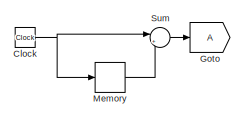
[diagram: Reaction Control System - part 1/3, top center region]
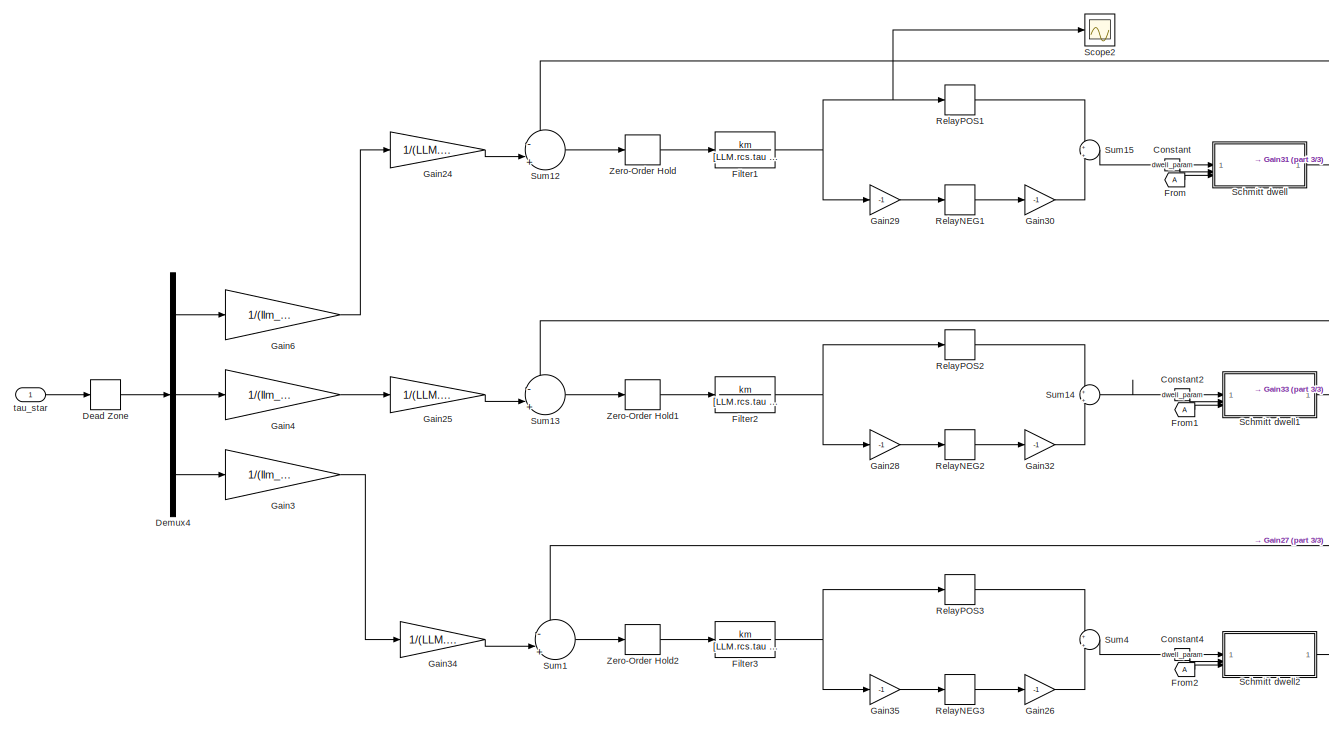
[diagram: Reaction Control System - part 2/3, left side, full height]
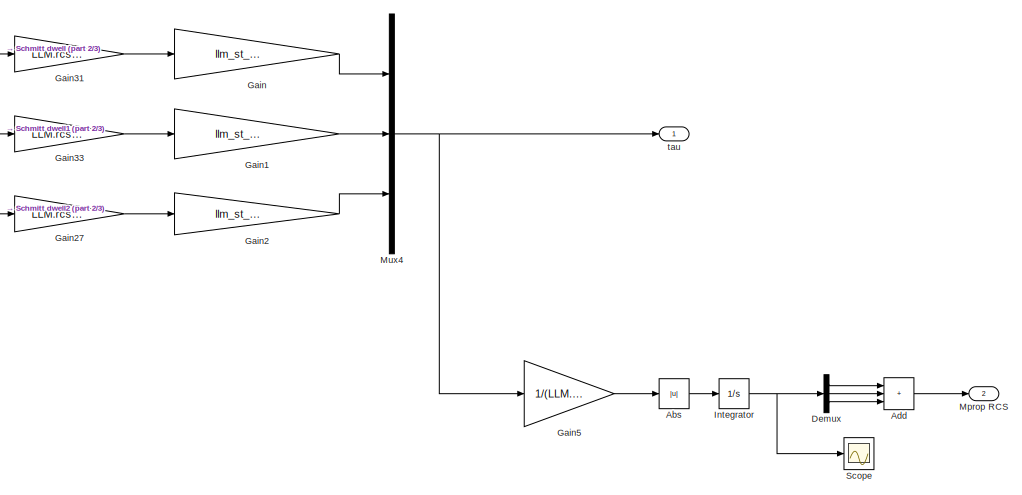
[diagram: Reaction Control System - part 3/3, bottom right region]
BLOCK [SubSystem] Reaction Control System
  NameLocation = top
  TreatAsAtomicUnit = on
BLOCK [Abs] Reaction Control System/Abs
  SaturateOnIntegerOverflow = off
BLOCK [Sum] Reaction Control System/Add
  IconShape = rectangular
  Inputs = +++
BLOCK [Clock] Reaction Control System/Clock
BLOCK [Constant] Reaction Control System/Constant
  Value = dwell_param
BLOCK [Constant] Reaction Control System/Constant2
  Value = dwell_param
BLOCK [Constant] Reaction Control System/Constant4
  Value = dwell_param
BLOCK [DeadZone] Reaction Control System/Dead Zone
  LowerValue = db(1)
  UpperValue = db(2)
BLOCK [Demux] Reaction Control System/Demux
  Outputs = 3
BLOCK [Demux] Reaction Control System/Demux4
  Outputs = 3
BLOCK [TransferFcn] Reaction Control System/Filter1
  Denominator = [LLM.rcs.tau 1]
  Numerator = km
BLOCK [TransferFcn] Reaction Control System/Filter2
  Denominator = [LLM.rcs.tau 1]
  Numerator = km
BLOCK [TransferFcn] Reaction Control System/Filter3
  Denominator = [LLM.rcs.tau 1]
  Numerator = km
BLOCK [From] Reaction Control System/From
BLOCK [From] Reaction Control System/From1
BLOCK [From] Reaction Control System/From2
BLOCK [Gain] Reaction Control System/Gain
  Gain = llm_st_length*sqrt(2)/2
BLOCK [Gain] Reaction Control System/Gain1
  Gain = llm_st_length*sqrt(2)/2
BLOCK [Gain] Reaction Control System/Gain2
  Gain = llm_st_length*sqrt(2)/2
BLOCK [Gain] Reaction Control System/Gain24
  Gain = 1/(LLM.rcs.Fmax*LLM.rcs.num_thruster_per_axis)
BLOCK [Gain] Reaction Control System/Gain25
  Gain = 1/(LLM.rcs.Fmax*LLM.rcs.num_thruster_per_axis)
BLOCK [Gain] Reaction Control System/Gain26
  Gain = -1
BLOCK [Gain] Reaction Control System/Gain27
  Gain = LLM.rcs.Fmax*LLM.rcs.num_thruster_per_axis
BLOCK [Gain] Reaction Control System/Gain28
  Gain = -1
BLOCK [Gain] Reaction Control System/Gain29
  Gain = -1
BLOCK [Gain] Reaction Control System/Gain3
  Gain = 1/(llm_st_length*sqrt(2)/2)
BLOCK [Gain] Reaction Control System/Gain30
  Gain = -1
BLOCK [Gain] Reaction Control System/Gain31
  Gain = LLM.rcs.Fmax*LLM.rcs.num_thruster_per_axis
BLOCK [Gain] Reaction Control System/Gain32
  Gain = -1
BLOCK [Gain] Reaction Control System/Gain33
  Gain = LLM.rcs.Fmax*LLM.rcs.num_thruster_per_axis
BLOCK [Gain] Reaction Control System/Gain34
  Gain = 1/(LLM.rcs.Fmax*LLM.rcs.num_thruster_per_axis)
BLOCK [Gain] Reaction Control System/Gain35
  Gain = -1
BLOCK [Gain] Reaction Control System/Gain4
  Gain = 1/(llm_st_length*sqrt(2)/2)
BLOCK [Gain] Reaction Control System/Gain5
  Gain = 1/(LLM.rcs.isp*g0*(llm_st_length/2))
BLOCK [Gain] Reaction Control System/Gain6
  Gain = 1/(llm_st_length*sqrt(2)/2)
BLOCK [Goto] Reaction Control System/Goto
BLOCK [Integrator] Reaction Control System/Integrator
BLOCK [Memory] Reaction Control System/Memory
BLOCK [Outport] Reaction Control System/Mprop RCS
  Port = 2
BLOCK [Mux] Reaction Control System/Mux4
  DisplayOption = bar
  Inputs = 3
BLOCK [Relay] Reaction Control System/RelayNEG1
  OffSwitchValue = 0.15
  OnSwitchValue = 0.45
  SampleTime = 0.01
  ZeroCross = off
BLOCK [Relay] Reaction Control System/RelayNEG2
  OffSwitchValue = Uoff
  OnSwitchValue = Uon
  SampleTime = 0.01
  ZeroCross = off
BLOCK [Relay] Reaction Control System/RelayNEG3
  OffSwitchValue = 0.15
  OnSwitchValue = 0.45
  SampleTime = 0.01
  ZeroCross = off
BLOCK [Relay] Reaction Control System/RelayPOS1
  OffSwitchValue = Uoff
  OnSwitchValue = Uon
  SampleTime = 0.01
  ZeroCross = off
BLOCK [Relay] Reaction Control System/RelayPOS2
  OffSwitchValue = Uoff
  OnSwitchValue = Uon
  SampleTime = 0.01
  ZeroCross = off
BLOCK [Relay] Reaction Control System/RelayPOS3
  OffSwitchValue = Uoff
  OnSwitchValue = Uon
  SampleTime = 0.01
  ZeroCross = off
BLOCK [SubSystem] Reaction Control System/Schmitt dwell
  ErrorFcn = Stateflow.Translate.translate
  PermitHierarchicalResolution = ExplicitOnly
  SFBlockType = MATLAB Function
  TreatAsAtomicUnit = on
BLOCK [Demux] Reaction Control System/Schmitt dwell/ Demux 
  Outputs = 1
BLOCK [S-Function] Reaction Control System/Schmitt dwell/ SFunction 
  EnableBusSupport = on
  FunctionName = sf_sfun
  PortCounts = [3 2]
  SFcnIsStateOwnerBlock = off
  SFunctionDeploymentMode = off
  Tag = Stateflow S-Function 1
BLOCK [Terminator] Reaction Control System/Schmitt dwell/ Terminator 
BLOCK [Inport] Reaction Control System/Schmitt dwell/Ts
  Port = 3
BLOCK [Inport] Reaction Control System/Schmitt dwell/param
  Port = 2
BLOCK [Inport] Reaction Control System/Schmitt dwell/u
BLOCK [Outport] Reaction Control System/Schmitt dwell/y
BLOCK [SubSystem] Reaction Control System/Schmitt dwell1
  ErrorFcn = Stateflow.Translate.translate
  PermitHierarchicalResolution = ExplicitOnly
  SFBlockType = MATLAB Function
  TreatAsAtomicUnit = on
BLOCK [Demux] Reaction Control System/Schmitt dwell1/ Demux 
  Outputs = 1
BLOCK [S-Function] Reaction Control System/Schmitt dwell1/ SFunction 
  EnableBusSupport = on
  FunctionName = sf_sfun
  PortCounts = [3 2]
  SFcnIsStateOwnerBlock = off
  SFunctionDeploymentMode = off
  Tag = Stateflow S-Function 5
BLOCK [Terminator] Reaction Control System/Schmitt dwell1/ Terminator 
BLOCK [Inport] Reaction Control System/Schmitt dwell1/Ts
  Port = 3
BLOCK [Inport] Reaction Control System/Schmitt dwell1/param
  Port = 2
BLOCK [Inport] Reaction Control System/Schmitt dwell1/u
BLOCK [Outport] Reaction Control System/Schmitt dwell1/y
BLOCK [SubSystem] Reaction Control System/Schmitt dwell2
  ErrorFcn = Stateflow.Translate.translate
  PermitHierarchicalResolution = ExplicitOnly
  SFBlockType = MATLAB Function
  TreatAsAtomicUnit = on
BLOCK [Demux] Reaction Control System/Schmitt dwell2/ Demux 
  Outputs = 1
BLOCK [S-Function] Reaction Control System/Schmitt dwell2/ SFunction 
  EnableBusSupport = on
  FunctionName = sf_sfun
  PortCounts = [3 2]
  SFcnIsStateOwnerBlock = off
  SFunctionDeploymentMode = off
  Tag = Stateflow S-Function 8
BLOCK [Terminator] Reaction Control System/Schmitt dwell2/ Terminator 
BLOCK [Inport] Reaction Control System/Schmitt dwell2/Ts
  Port = 3
BLOCK [Inport] Reaction Control System/Schmitt dwell2/param
  Port = 2
BLOCK [Inport] Reaction Control System/Schmitt dwell2/u
BLOCK [Outport] Reaction Control System/Schmitt dwell2/y
BLOCK [Scope] Reaction Control System/Scope
  Floating = off
  NumInputPorts = 1
  ScopeSpecificationString = Simulink.scopes.TimeScopeBlockCfg('CurrentConfiguration', extmgr.ConfigurationSet(extmgr.Configuration('Core','General UI',true),extmgr.Configuration('Core','Source UI',true),extmgr.Configuration('Sources','WiredSimulink',true,'DataLoggingVariableName','ScopeData1'),extmgr.Configuration('Visuals','Time Domain',true,'SerializedDisplays',{struct('MinYLimReal','-2.72256','MaxYLimReal','24.50306','YLa...<+1620ch>
BLOCK [Scope] Reaction Control System/Scope2
  Floating = off
  NumInputPorts = 1
  ScopeSpecificationString = Simulink.scopes.TimeScopeBlockCfg('CurrentConfiguration', extmgr.ConfigurationSet(extmgr.Configuration('Core','General UI',true),extmgr.Configuration('Core','Source UI',true),extmgr.Configuration('Sources','WiredSimulink',true,'DataLoggingVariableName','ScopeData4'),extmgr.Configuration('Visuals','Time Domain',true,'SerializedDisplays',{struct('MinYLimReal','-0.56194','MaxYLimReal','0.51297','YLab...<+1530ch>
BLOCK [Sum] Reaction Control System/Sum
  Inputs = |+-
BLOCK [Sum] Reaction Control System/Sum1
  Inputs = -||+|||
BLOCK [Sum] Reaction Control System/Sum12
  Inputs = -||+|||
BLOCK [Sum] Reaction Control System/Sum13
  Inputs = -||+|||
BLOCK [Sum] Reaction Control System/Sum14
  Inputs = +|+
BLOCK [Sum] Reaction Control System/Sum15
  Inputs = +|+
BLOCK [Sum] Reaction Control System/Sum4
  Inputs = +|+
BLOCK [ZeroOrderHold] Reaction Control System/Zero-Order Hold
  SampleTime = 0.01
BLOCK [ZeroOrderHold] Reaction Control System/Zero-Order Hold1
  SampleTime = 0.01
BLOCK [ZeroOrderHold] Reaction Control System/Zero-Order Hold2
  SampleTime = 0.01
BLOCK [Outport] Reaction Control System/tau
BLOCK [Inport] Reaction Control System/tau_star
BLOCK [Scope] Scope
  Floating = off
  NumInputPorts = 1
  ScopeSpecificationString = Simulink.scopes.TimeScopeBlockCfg('CurrentConfiguration', extmgr.ConfigurationSet(extmgr.Configuration('Core','General UI',true),extmgr.Configuration('Core','Source UI',true),extmgr.Configuration('Sources','WiredSimulink',true,'DataLoggingVariableName','ScopeData4'),extmgr.Configuration('Visuals','Time Domain',true,'SerializedDisplays',{struct('MinYLimReal','12396.75524','MaxYLimReal','22587.30497...<+1585ch>
BLOCK [Scope] Scope2
  Floating = off
  NumInputPorts = 1
  ScopeSpecificationString = Simulink.scopes.TimeScopeBlockCfg('CurrentConfiguration', extmgr.ConfigurationSet(extmgr.Configuration('Core','General UI',true),extmgr.Configuration('Core','Source UI',true),extmgr.Configuration('Sources','WiredSimulink',true,'DataLoggingVariableName','ScopeData1'),extmgr.Configuration('Visuals','Time Domain',true,'SerializedDisplays',{struct('MinYLimReal','-239612.03589','MaxYLimReal','53970.143...<+1608ch>
BLOCK [Scope] Scope3
  Floating = off
  NumInputPorts = 1
  ScopeSpecificationString = Simulink.scopes.TimeScopeBlockCfg('CurrentConfiguration', extmgr.ConfigurationSet(extmgr.Configuration('Core','General UI',true),extmgr.Configuration('Core','Source UI',true),extmgr.Configuration('Sources','WiredSimulink',true,'DataLoggingVariableName','ScopeData5'),extmgr.Configuration('Visuals','Time Domain',true,'SerializedDisplays',{struct('MinYLimReal','6.55533','MaxYLimReal','8.14114','YLabe...<+1702ch>
BLOCK [Scope] Scope4
  Floating = off
  NumInputPorts = 1
  ScopeSpecificationString = Simulink.scopes.TimeScopeBlockCfg('CurrentConfiguration', extmgr.ConfigurationSet(extmgr.Configuration('Core','General UI',true),extmgr.Configuration('Core','Source UI',true),extmgr.Configuration('Sources','WiredSimulink',true,'DataLoggingVariableName','ScopeData2'),extmgr.Configuration('Visuals','Time Domain',true,'SerializedDisplays',{struct('MinYLimReal','-225.00000','MaxYLimReal','225.00000','...<+1563ch>
BLOCK [Selector] Selector1
  IndexOptions = Index vector (dialog)
  Indices = [3]
  InputPortWidth = 3
  OutputSizes = 1
BLOCK [Stop] Stop Simulation1
BLOCK [Sum] Sum4
  Inputs = |+-
BLOCK [Sum] Sum5
  Inputs = ++|
BLOCK [Terminator] Terminator
BLOCK [ToWorkspace] To Workspace
  FixptAsFi = on
  MaxDataPoints = inf
  SampleTime = -1
  VariableName = pos
BLOCK [ToWorkspace] To Workspace1
  FixptAsFi = on
  MaxDataPoints = inf
  SampleTime = -1
  VariableName = vel
BLOCK [ToWorkspace] To Workspace2
  FixptAsFi = on
  MaxDataPoints = inf
  SampleTime = -1
  VariableName = quat
BLOCK [ToWorkspace] To Workspace3
  FixptAsFi = on
  MaxDataPoints = inf
  NameLocation = top
  SampleTime = -1
  VariableName = quat_ref
BLOCK [ToWorkspace] To Workspace4
  FixptAsFi = on
  MaxDataPoints = inf
  NameLocation = top
  SampleTime = -1
  VariableName = prop_rcs
BLOCK [ToWorkspace] To Workspace5
  FixptAsFi = on
  MaxDataPoints = inf
  SampleTime = -1
  VariableName = prop_main
BLOCK [ToWorkspace] To Workspace6
  FixptAsFi = on
  MaxDataPoints = inf
  SampleTime = -1
  VariableName = mass
BLOCK [ToWorkspace] To Workspace7
  FixptAsFi = on
  MaxDataPoints = inf
  SampleTime = -1
  VariableName = eul_ang
BLOCK [ToWorkspace] To Workspace8
  FixptAsFi = on
  MaxDataPoints = inf
  SampleTime = -1
  VariableName = rcs_fire_rate
BLOCK [Scope] Torque RCS
  Floating = off
  NumInputPorts = 1
  ScopeSpecificationString = Simulink.scopes.TimeScopeBlockCfg('CurrentConfiguration', extmgr.ConfigurationSet(extmgr.Configuration('Core','General UI',true),extmgr.Configuration('Core','Source UI',true),extmgr.Configuration('Sources','WiredSimulink',true,'DataLoggingVariableName','ScopeData2'),extmgr.Configuration('Visuals','Time Domain',true,'SerializedDisplays',{struct('MinYLimReal','-6989.75053','MaxYLimReal','6989.75053'...<+1729ch>
BLOCK [Scope] Total Torque
  Floating = off
  NumInputPorts = 1
  ScopeSpecificationString = Simulink.scopes.TimeScopeBlockCfg('CurrentConfiguration', extmgr.ConfigurationSet(extmgr.Configuration('Core','General UI',true),extmgr.Configuration('Core','Source UI',true),extmgr.Configuration('Sources','WiredSimulink',true,'DataLoggingVariableName','ScopeData4'),extmgr.Configuration('Visuals','Time Domain',true,'SerializedDisplays',{struct('MinYLimReal','-26219.42859','MaxYLimReal','26150.8749...<+1649ch>
BLOCK [SubSystem] Translational Dynamics
  NameLocation = top
BLOCK [Inport] Translational Dynamics/FI
BLOCK [Integrator] Translational Dynamics/Integrator Pos
  InitialCondition = r0
BLOCK [Integrator] Translational Dynamics/Integrator Vel
  InitialCondition = v0
BLOCK [Outport] Translational Dynamics/Position
BLOCK [SubSystem] Translational Dynamics/Translational
  ErrorFcn = Stateflow.Translate.translate
  PermitHierarchicalResolution = ExplicitOnly
  SFBlockType = MATLAB Function
  TreatAsAtomicUnit = on
BLOCK [Demux] Translational Dynamics/Translational/ Demux 
  Outputs = 1
BLOCK [S-Function] Translational Dynamics/Translational/ SFunction 
  EnableBusSupport = on
  FunctionName = sf_sfun
  PortCounts = [2 2]
  SFcnIsStateOwnerBlock = off
  SFunctionDeploymentMode = off
  Tag = Stateflow S-Function 2
BLOCK [Terminator] Translational Dynamics/Translational/ Terminator 
BLOCK [Inport] Translational Dynamics/Translational/FI
BLOCK [Outport] Translational Dynamics/Translational/aI
BLOCK [Inport] Translational Dynamics/Translational/m
  Port = 2
BLOCK [Outport] Translational Dynamics/Velocity
  Port = 2
BLOCK [Outport] Translational Dynamics/aI
  Port = 3
BLOCK [Inport] Translational Dynamics/m
  Port = 2
BLOCK [Scope] Velocity
  Floating = off
  NumInputPorts = 1
  ScopeSpecificationString = Simulink.scopes.TimeScopeBlockCfg('CurrentConfiguration', extmgr.ConfigurationSet(extmgr.Configuration('Core','General UI',true,'FigureColor',[1 1 1]),extmgr.Configuration('Core','Source UI',true),extmgr.Configuration('Sources','WiredSimulink',true,'DataLoggingVariableName','ScopeData2'),extmgr.Configuration('Visuals','Time Domain',true,'SerializedDisplays',{struct('MinYLimReal','-1881.74389','Max...<+1711ch>
ANNOTATION (root): ACTUATORS
ANNOTATION (root): GUIDANCE LAW
ANNOTATION (root): NAVIGATION
ANNOTATION (root): PLANT
NET Attitude Guidance1/Attitude Guidance:1 -> Attitude Guidance1/Gain:1, Attitude Guidance1/Selector:1, Attitude Guidance1/Switch:1
LINE Attitude Guidance1/Gain:1 -> Attitude Guidance1/Switch:3
LINE Attitude Guidance1/Selector:1 -> Attitude Guidance1/Switch:2
LINE Attitude Guidance1/Switch:1 -> Attitude Guidance1/q_star:1
LINE Attitude Guidance1/f_star:1 -> Attitude Guidance1/Attitude Guidance:1
NET Attitude Guidance1:1 -> Comparison quat - quat*:1, Dynamic inversion based:2, To Workspace3:1
LINE Compare To Constant1:1 -> Stop Simulation1:1
LINE Constant1:1 -> Sum4:2
LINE Dynamic inversion based/I:1 -> Dynamic inversion based/ICL:3
LINE Dynamic inversion based/ICL/Constant1:1 -> Dynamic inversion based/ICL/MATLAB Function:3
LINE Dynamic inversion based/ICL/Constant:1 -> Dynamic inversion based/ICL/MATLAB Function:4
LINE Dynamic inversion based/ICL/Dead Zone:1 -> Dynamic inversion based/ICL/MATLAB Function:2
LINE Dynamic inversion based/ICL/I:1 -> Dynamic inversion based/ICL/MATLAB Function:5
NET Dynamic inversion based/ICL/MATLAB Function:1 -> Dynamic inversion based/ICL/Scope:1, Dynamic inversion based/ICL/tau*:1
LINE Dynamic inversion based/ICL/omega*:1 -> Dynamic inversion based/ICL/Dead Zone:1
LINE Dynamic inversion based/ICL/omega:1 -> Dynamic inversion based/ICL/MATLAB Function:1
LINE Dynamic inversion based/ICL:1 -> Dynamic inversion based/tau_star:1
LINE Dynamic inversion based/OCL/Gain1:1 -> Dynamic inversion based/OCL/Gain:1
LINE Dynamic inversion based/OCL/Gain:1 -> Dynamic inversion based/OCL/Sum:1
LINE Dynamic inversion based/OCL/MATLAB Function1:1 -> Dynamic inversion based/OCL/Selector:1
LINE Dynamic inversion based/OCL/Selector:1 -> Dynamic inversion based/OCL/Gain1:1
LINE Dynamic inversion based/OCL/Sum:1 -> Dynamic inversion based/OCL/omega*:1
LINE Dynamic inversion based/OCL/e_dot*:1 -> Dynamic inversion based/OCL/Sum:2
LINE Dynamic inversion based/OCL/q*:1 -> Dynamic inversion based/OCL/MATLAB Function1:1
LINE Dynamic inversion based/OCL/q:1 -> Dynamic inversion based/OCL/MATLAB Function1:2
LINE Dynamic inversion based/OCL:1 -> Dynamic inversion based/ICL:2
LINE Dynamic inversion based/eul_star_dot:1 -> Dynamic inversion based/OCL:3
LINE Dynamic inversion based/omega:1 -> Dynamic inversion based/ICL:1
LINE Dynamic inversion based/q*:1 -> Dynamic inversion based/OCL:2
LINE Dynamic inversion based/q:1 -> Dynamic inversion based/OCL:1
NET Dynamic inversion based:1 -> Controller Torque:1, Reaction Control System:1
LINE From1:1 -> Main Engine:2
NET From2:1 -> Comparison quat - quat*:2, Dynamic inversion based:1, Goto4:1, To Workspace2:1
LINE From3:1 -> Guidance Law1:1
LINE From4:1 -> KF Translation1:3
NET From6:1 -> Goto10:1, KF Translation1:2
LINE From7:1 -> Guidance Law1:2
LINE From8:1 -> Dynamic inversion based:3
LINE From:1 -> MATLAB Function:1
LINE Gain1:1 -> Product:2
NET Gain:1 -> Scope4:1, To Workspace7:1
LINE Guidance Law1/(r,v)_approach:1 -> Guidance Law1/Guidance Law:8
LINE Guidance Law1/(r,v)_breaking:1 -> Guidance Law1/Guidance Law:6
NET Guidance Law1/Clock2:1 -> Guidance Law1/Guidance Law:1, Guidance Law1/Memory3:1, Guidance Law1/Sum5:1
LINE Guidance Law1/Demux:1 -> Guidance Law1/Transfer Fcn:1
LINE Guidance Law1/Demux:2 -> Guidance Law1/Transfer Fcn1:1
LINE Guidance Law1/Demux:3 -> Guidance Law1/Transfer Fcn2:1
NET Guidance Law1/Guidance Law:1 -> Guidance Law1/Demux:1, Guidance Law1/Memory4:1
LINE Guidance Law1/Memory3:1 -> Guidance Law1/Sum5:2
LINE Guidance Law1/Memory4:1 -> Guidance Law1/Guidance Law:5
LINE Guidance Law1/Mux:1 -> Guidance Law1/a*:1
LINE Guidance Law1/Sum5:1 -> Guidance Law1/Guidance Law:2
LINE Guidance Law1/Tgo_approach:1 -> Guidance Law1/Guidance Law:9
LINE Guidance Law1/Tgo_breaking:1 -> Guidance Law1/Guidance Law:7
LINE Guidance Law1/Transfer Fcn1:1 -> Guidance Law1/Mux:2
LINE Guidance Law1/Transfer Fcn2:1 -> Guidance Law1/Mux:3
LINE Guidance Law1/Transfer Fcn:1 -> Guidance Law1/Mux:1
LINE Guidance Law1/pos:1 -> Guidance Law1/Guidance Law:3
LINE Guidance Law1/target_vdesc:1 -> Guidance Law1/Guidance Law:10
LINE Guidance Law1/tilt_rate_max_deg:1 -> Guidance Law1/Guidance Law:11
LINE Guidance Law1/vel:1 -> Guidance Law1/Guidance Law:4
NET Guidance Law1:1 -> Product:1, Scope2:1
NET KF Translation1/Demux:1 -> KF Translation1/Pos_est:1, KF Translation1/Scope:2
NET KF Translation1/Demux:2 -> KF Translation1/Scope1:2, KF Translation1/Vel_est:1
LINE KF Translation1/EKF Translation1:1 -> KF Translation1/Unit Delay:1
LINE KF Translation1/Measurement Noise/ Noise X:1 -> KF Translation1/Measurement Noise/Mux1:1
LINE KF Translation1/Measurement Noise/ Noise Xdot:1 -> KF Translation1/Measurement Noise/Mux3:1
LINE KF Translation1/Measurement Noise/Mux1:1 -> KF Translation1/Measurement Noise/Noise_Pos:1
LINE KF Translation1/Measurement Noise/Mux3:1 -> KF Translation1/Measurement Noise/Noise_Vel:1
LINE KF Translation1/Measurement Noise/Noise Y:1 -> KF Translation1/Measurement Noise/Mux1:2
LINE KF Translation1/Measurement Noise/Noise Ydot:1 -> KF Translation1/Measurement Noise/Mux3:2
LINE KF Translation1/Measurement Noise/Noise Z:1 -> KF Translation1/Measurement Noise/Mux1:3
LINE KF Translation1/Measurement Noise/Noise Zdot:1 -> KF Translation1/Measurement Noise/Mux3:3
LINE KF Translation1/Measurement Noise:1 -> KF Translation1/Sum:2
LINE KF Translation1/Measurement Noise:2 -> KF Translation1/Sum1:2
LINE KF Translation1/Mux:1 -> KF Translation1/Rate Transition:1
LINE KF Translation1/Pos:1 -> KF Translation1/Sum:1
LINE KF Translation1/Qa:1 -> KF Translation1/EKF Translation1:4
LINE KF Translation1/R:1 -> KF Translation1/EKF Translation1:5
LINE KF Translation1/Rate Transition:1 -> KF Translation1/EKF Translation1:1
NET KF Translation1/Sum1:1 -> KF Translation1/Mux:2, KF Translation1/Scope1:1
NET KF Translation1/Sum:1 -> KF Translation1/Mux:1, KF Translation1/Scope:1
LINE KF Translation1/Ts:1 -> KF Translation1/EKF Translation1:3
LINE KF Translation1/Unit Delay:1 -> KF Translation1/Demux:1
LINE KF Translation1/Vel:1 -> KF Translation1/Sum1:1
LINE KF Translation1/aI:1 -> KF Translation1/EKF Translation1:2
LINE MATLAB Function:1 -> Gain:1
LINE MEKF/Constant1:1 -> MEKF/MATLAB Function:3
LINE MEKF/Constant2:1 -> MEKF/MATLAB Function4:6
LINE MEKF/Constant3:1 -> MEKF/MATLAB Function4:5
NET MEKF/Constant4:1 -> MEKF/MATLAB Function4:2, MEKF/MATLAB Function:2
LINE MEKF/Constant:1 -> MEKF/MATLAB Function:4
LINE MEKF/MATLAB Function1:1 -> MEKF/Zero-Order Hold1:1
LINE MEKF/MATLAB Function1:2 -> MEKF/MATLAB Function4:4
LINE MEKF/MATLAB Function4:1 -> MEKF/q_est:1
LINE MEKF/MATLAB Function4:2 -> MEKF/omega_est:1
LINE MEKF/MATLAB Function:1 -> MEKF/Zero-Order Hold:1
LINE MEKF/Subsystem/Constant1:1 -> MEKF/Subsystem/If Action Subsystem2:1
LINE MEKF/Subsystem/Constant2:1 -> MEKF/Subsystem/If Action Subsystem1:1
LINE MEKF/Subsystem/Constant:1 -> MEKF/Subsystem/If Action Subsystem:1
LINE MEKF/Subsystem/If Action Subsystem/In1:1 -> MEKF/Subsystem/If Action Subsystem/Out1:1
LINE MEKF/Subsystem/If Action Subsystem1/In1:1 -> MEKF/Subsystem/If Action Subsystem1/Out1:1
LINE MEKF/Subsystem/If Action Subsystem1:1 -> MEKF/Subsystem/Merge:2
LINE MEKF/Subsystem/If Action Subsystem2/In1:1 -> MEKF/Subsystem/If Action Subsystem2/Out1:1
LINE MEKF/Subsystem/If Action Subsystem2:1 -> MEKF/Subsystem/Merge:3
LINE MEKF/Subsystem/If Action Subsystem:1 -> MEKF/Subsystem/Merge:1
LINE MEKF/Subsystem/If:1 -> MEKF/Subsystem/If Action Subsystem:ifaction
LINE MEKF/Subsystem/If:2 -> MEKF/Subsystem/If Action Subsystem1:ifaction
LINE MEKF/Subsystem/If:3 -> MEKF/Subsystem/If Action Subsystem2:ifaction
LINE MEKF/Subsystem/Merge:1 -> MEKF/Subsystem/sig_meas:1
LINE MEKF/Subsystem/Selector:1 -> MEKF/Subsystem/If:1
LINE MEKF/Subsystem/altitude:1 -> MEKF/Subsystem/Selector:1
LINE MEKF/Subsystem:1 -> MEKF/MATLAB Function1:2
LINE MEKF/Zero-Order Hold1:1 -> MEKF/MATLAB Function4:3
LINE MEKF/Zero-Order Hold:1 -> MEKF/MATLAB Function4:1
LINE MEKF/omega_true:1 -> MEKF/MATLAB Function:1
LINE MEKF/pos_true:1 -> MEKF/Subsystem:1
LINE MEKF/q_true:1 -> MEKF/MATLAB Function1:1
LINE MEKF:1 -> Goto3:1
LINE MEKF:2 -> Goto5:1
LINE Main Engine/1//Isp*g0:1 -> Main Engine/Integrator:1
LINE Main Engine/Alpha Bias:1 -> Main Engine/Sum:1
LINE Main Engine/Alpha Random:1 -> Main Engine/Sum:2
LINE Main Engine/CoMtot:1 -> Main Engine/Selector2:1
LINE Main Engine/Constant1:1 -> Main Engine/Manual Switch:2
LINE Main Engine/Constant2:1 -> Main Engine/Mounting error:3
LINE Main Engine/Constant:1 -> Main Engine/Manual Switch:1
LINE Main Engine/Demux4:1 -> Main Engine/Gain3:1
LINE Main Engine/Demux4:2 -> Main Engine/Gain5:1
LINE Main Engine/Demux4:3 -> Main Engine/Gain1:1
LINE Main Engine/Gain1:1 -> Main Engine/Transfer Fcn1:1
LINE Main Engine/Gain2:1 -> Main Engine/Switch1:3
LINE Main Engine/Gain3:1 -> Main Engine/Mux4:1
LINE Main Engine/Gain5:1 -> Main Engine/Mux4:2
LINE Main Engine/Gain:1 -> Main Engine/Switch1:1
NET Main Engine/Integrator:1 -> Main Engine/Scope:1, Main Engine/Switch1:2, Main Engine/mprop_bruned:1
LINE Main Engine/Manual Switch:1 -> Main Engine/Mounting error:1
NET Main Engine/Misallignment Torque:1 -> Main Engine/Misal. Torque:1, Main Engine/Scope1:1
NET Main Engine/Mounting error:1 -> Main Engine/Misallignment Torque:2, Main Engine/Output:1, Main Engine/body 2 inertial:1
LINE Main Engine/Mux4:1 -> Main Engine/Selector:1
NET Main Engine/Saturation1:1 -> Main Engine/Gain2:1, Main Engine/Gain:1
LINE Main Engine/Selector2:1 -> Main Engine/Transfer Fcn:1
LINE Main Engine/Selector:1 -> Main Engine/Mounting error:4
LINE Main Engine/Sum:1 -> Main Engine/Mounting error:2
NET Main Engine/Switch1:1 -> Main Engine/1//Isp*g0:1, Main Engine/Mux4:3
LINE Main Engine/Transfer Fcn1:1 -> Main Engine/Saturation1:1
LINE Main Engine/Transfer Fcn:1 -> Main Engine/Misallignment Torque:1
LINE Main Engine/body 2 inertial:1 -> Main Engine/f_inertial:1
LINE Main Engine/f*:1 -> Main Engine/inertial 2 body:1
LINE Main Engine/inertial 2 body:1 -> Main Engine/Demux4:1
NET Main Engine/q:1 -> Main Engine/body 2 inertial:2, Main Engine/inertial 2 body:2
NET Main Engine:1 -> Force Inertial:1, Goto:1, Translational Dynamics:1
NET Main Engine:2 -> Multi-Body MASS time-varying:1, Propellant Main Engine:1, To Workspace5:1
LINE Main Engine:3 -> Sum5:1
LINE Main Engine:4 -> Force Body:1
LINE Multi-Body MASS time-varying/GEOSAT area inertia:1 -> Multi-Body MASS time-varying/Multi-Body MASS:8
LINE Multi-Body MASS time-varying/GEOSAT cog:1 -> Multi-Body MASS time-varying/Multi-Body MASS:6
LINE Multi-Body MASS time-varying/GEOSAT dry mass:1 -> Multi-Body MASS time-varying/Multi-Body MASS:4
LINE Multi-Body MASS time-varying/Gain:1 -> Multi-Body MASS time-varying/Mtot:1
LINE Multi-Body MASS time-varying/LLM area inertia:1 -> Multi-Body MASS time-varying/Multi-Body MASS:7
LINE Multi-Body MASS time-varying/LLM cog:1 -> Multi-Body MASS time-varying/Multi-Body MASS:5
LINE Multi-Body MASS time-varying/LLM wet mass:1 -> Multi-Body MASS time-varying/Multi-Body MASS:2
LINE Multi-Body MASS time-varying/Mprop_burnt:1 -> Multi-Body MASS time-varying/Multi-Body MASS:1
LINE Multi-Body MASS time-varying/Multi-Body MASS:1 -> Multi-Body MASS time-varying/Gain:1
LINE Multi-Body MASS time-varying/Multi-Body MASS:2 -> Multi-Body MASS time-varying/Inertia:1
LINE Multi-Body MASS time-varying/Multi-Body MASS:3 -> Multi-Body MASS time-varying/CoMtot:1
LINE Multi-Body MASS time-varying/ST dry mass:1 -> Multi-Body MASS time-varying/Multi-Body MASS:3
NET Multi-Body MASS time-varying:1 -> Gain1:1, Goto1:1, Scope:1, To Workspace6:1, Translational Dynamics:2
NET Multi-Body MASS time-varying:2 -> Dynamic inversion based:4, Plant Attitude - Euler:1
NET Multi-Body MASS time-varying:3 -> Main Engine:3, Scope3:1
LINE Plant Attitude - Euler/Attitude - Euler Equation:1 -> Plant Attitude - Euler/Integrator:1
LINE Plant Attitude - Euler/Gain:1 -> Plant Attitude - Euler/Switch:3
LINE Plant Attitude - Euler/Inertia:1 -> Plant Attitude - Euler/Attitude - Euler Equation:1
NET Plant Attitude - Euler/Integrator3:1 -> Plant Attitude - Euler/Gain:1, Plant Attitude - Euler/MATLAB Function:2, Plant Attitude - Euler/Scope:1, Plant Attitude - Euler/Selector:1, Plant Attitude - Euler/Switch:1
NET Plant Attitude - Euler/Integrator:1 -> Plant Attitude - Euler/Attitude - Euler Equation:3, Plant Attitude - Euler/MATLAB Function:1, Plant Attitude - Euler/omega:1
NET Plant Attitude - Euler/MATLAB Function:1 -> Plant Attitude - Euler/Integrator3:1, Plant Attitude - Euler/qdot:1
LINE Plant Attitude - Euler/Selector:1 -> Plant Attitude - Euler/Switch:2
LINE Plant Attitude - Euler/Switch:1 -> Plant Attitude - Euler/q:1
LINE Plant Attitude - Euler/tau:1 -> Plant Attitude - Euler/Attitude - Euler Equation:2
LINE Plant Attitude - Euler:1 -> MEKF:1
LINE Plant Attitude - Euler:2 -> MEKF:2
LINE Plant Attitude - Euler:3 -> Terminator:1
NET Product:1 -> Attitude Guidance1:1, Main Engine:1
LINE Reaction Control System/Abs:1 -> Reaction Control System/Integrator:1
LINE Reaction Control System/Add:1 -> Reaction Control System/Mprop RCS:1
NET Reaction Control System/Clock:1 -> Reaction Control System/Memory:1, Reaction Control System/Sum:1
LINE Reaction Control System/Constant2:1 -> Reaction Control System/Schmitt dwell1:2
LINE Reaction Control System/Constant4:1 -> Reaction Control System/Schmitt dwell2:2
LINE Reaction Control System/Constant:1 -> Reaction Control System/Schmitt dwell:2
LINE Reaction Control System/Dead Zone:1 -> Reaction Control System/Demux4:1
LINE Reaction Control System/Demux4:1 -> Reaction Control System/Gain6:1
LINE Reaction Control System/Demux4:2 -> Reaction Control System/Gain4:1
LINE Reaction Control System/Demux4:3 -> Reaction Control System/Gain3:1
LINE Reaction Control System/Demux:1 -> Reaction Control System/Add:1
LINE Reaction Control System/Demux:2 -> Reaction Control System/Add:2
LINE Reaction Control System/Demux:3 -> Reaction Control System/Add:3
NET Reaction Control System/Filter1:1 -> Reaction Control System/Gain29:1, Reaction Control System/RelayPOS1:1, Reaction Control System/Scope2:1
NET Reaction Control System/Filter2:1 -> Reaction Control System/Gain28:1, Reaction Control System/RelayPOS2:1
NET Reaction Control System/Filter3:1 -> Reaction Control System/Gain35:1, Reaction Control System/RelayPOS3:1
LINE Reaction Control System/From1:1 -> Reaction Control System/Schmitt dwell1:3
LINE Reaction Control System/From2:1 -> Reaction Control System/Schmitt dwell2:3
LINE Reaction Control System/From:1 -> Reaction Control System/Schmitt dwell:3
LINE Reaction Control System/Gain1:1 -> Reaction Control System/Mux4:2
LINE Reaction Control System/Gain24:1 -> Reaction Control System/Sum12:2
LINE Reaction Control System/Gain25:1 -> Reaction Control System/Sum13:2
LINE Reaction Control System/Gain26:1 -> Reaction Control System/Sum4:2
LINE Reaction Control System/Gain27:1 -> Reaction Control System/Gain2:1
LINE Reaction Control System/Gain28:1 -> Reaction Control System/RelayNEG2:1
LINE Reaction Control System/Gain29:1 -> Reaction Control System/RelayNEG1:1
LINE Reaction Control System/Gain2:1 -> Reaction Control System/Mux4:3
LINE Reaction Control System/Gain30:1 -> Reaction Control System/Sum15:2
LINE Reaction Control System/Gain31:1 -> Reaction Control System/Gain:1
LINE Reaction Control System/Gain32:1 -> Reaction Control System/Sum14:2
LINE Reaction Control System/Gain33:1 -> Reaction Control System/Gain1:1
LINE Reaction Control System/Gain34:1 -> Reaction Control System/Sum1:2
LINE Reaction Control System/Gain35:1 -> Reaction Control System/RelayNEG3:1
LINE Reaction Control System/Gain3:1 -> Reaction Control System/Gain34:1
LINE Reaction Control System/Gain4:1 -> Reaction Control System/Gain25:1
LINE Reaction Control System/Gain5:1 -> Reaction Control System/Abs:1
LINE Reaction Control System/Gain6:1 -> Reaction Control System/Gain24:1
LINE Reaction Control System/Gain:1 -> Reaction Control System/Mux4:1
NET Reaction Control System/Integrator:1 -> Reaction Control System/Demux:1, Reaction Control System/Scope:1
LINE Reaction Control System/Memory:1 -> Reaction Control System/Sum:2
NET Reaction Control System/Mux4:1 -> Reaction Control System/Gain5:1, Reaction Control System/tau:1
LINE Reaction Control System/RelayNEG1:1 -> Reaction Control System/Gain30:1
LINE Reaction Control System/RelayNEG2:1 -> Reaction Control System/Gain32:1
LINE Reaction Control System/RelayNEG3:1 -> Reaction Control System/Gain26:1
LINE Reaction Control System/RelayPOS1:1 -> Reaction Control System/Sum15:1
LINE Reaction Control System/RelayPOS2:1 -> Reaction Control System/Sum14:1
LINE Reaction Control System/RelayPOS3:1 -> Reaction Control System/Sum4:1
NET Reaction Control System/Schmitt dwell1:1 -> Reaction Control System/Gain33:1, Reaction Control System/Sum13:1
NET Reaction Control System/Schmitt dwell2:1 -> Reaction Control System/Gain27:1, Reaction Control System/Sum1:1
NET Reaction Control System/Schmitt dwell:1 -> Reaction Control System/Gain31:1, Reaction Control System/Sum12:1
LINE Reaction Control System/Sum12:1 -> Reaction Control System/Zero-Order Hold:1
LINE Reaction Control System/Sum13:1 -> Reaction Control System/Zero-Order Hold1:1
LINE Reaction Control System/Sum14:1 -> Reaction Control System/Schmitt dwell1:1
LINE Reaction Control System/Sum15:1 -> Reaction Control System/Schmitt dwell:1
LINE Reaction Control System/Sum1:1 -> Reaction Control System/Zero-Order Hold2:1
LINE Reaction Control System/Sum4:1 -> Reaction Control System/Schmitt dwell2:1
LINE Reaction Control System/Sum:1 -> Reaction Control System/Goto:1
LINE Reaction Control System/Zero-Order Hold1:1 -> Reaction Control System/Filter2:1
LINE Reaction Control System/Zero-Order Hold2:1 -> Reaction Control System/Filter3:1
LINE Reaction Control System/Zero-Order Hold:1 -> Reaction Control System/Filter1:1
LINE Reaction Control System/tau_star:1 -> Reaction Control System/Dead Zone:1
NET Reaction Control System:1 -> Sum5:2, To Workspace8:1, Torque RCS:1
NET Reaction Control System:2 -> Propellant RCS:1, To Workspace4:1
LINE Selector1:1 -> Sum4:1
LINE Sum4:1 -> Compare To Constant1:1
NET Sum5:1 -> Plant Attitude - Euler:2, Total Torque:1
LINE Translational Dynamics/FI:1 -> Translational Dynamics/Translational:1
LINE Translational Dynamics/Integrator Pos:1 -> Translational Dynamics/Position:1
NET Translational Dynamics/Integrator Vel:1 -> Translational Dynamics/Integrator Pos:1, Translational Dynamics/Velocity:1
NET Translational Dynamics/Translational:1 -> Translational Dynamics/Integrator Vel:1, Translational Dynamics/aI:1
LINE Translational Dynamics/m:1 -> Translational Dynamics/Translational:2
NET Translational Dynamics:1 -> Goto7:1, Goto9:1, KF Translation1:1, MEKF:3, Position:1, Selector1:1, To Workspace:1
NET Translational Dynamics:2 -> Goto8:1, To Workspace1:1, Velocity:1
LINE Translational Dynamics:3 -> Goto6:1
note: NET lines group one-source signal fan-out (src -> all destinations, sorted); 1:1 wires keep LINE
CHART KF Translation1/EKF Translation1 states=1 transitions=1
  STATE_LABEL 'eML_blk_kernel()'
  STATE_LABEL 'SCRIPT:\nfunction [x_hat, P_out, nu, nis] = kf_transl_core(z, aI, Ts, Qd, R)\n%#codegen\n% KF traslazionale discreto con ingresso noto aI (inerziale).\n% z  : 6x1 [x;y;z; vx;vy;vz] (discreto, con rumore)\n% aI : 3x1 accelerazione in inerziale [m/s^2] (FI/m + gI)\n% Ts : sample time [s]\n% Qd : 6x6 process covariance (discreta)\n% R  : 6x6 measurement covariance\nQd = Qd*eye(6);\nR = R*eye(6);\npersistent x P...<+665ch>'
CHART Guidance Law1/Guidance Law states=1 transitions=1
  STATE_LABEL 'eML_blk_kernel()'
  STATE_LABEL 'SCRIPT:\nfunction a_star = fcn(time, dt, pos, vel, prev_a, target_breaking, Tgo_breaking, target_approach, Tgo_approach, target_vdesc, tilt_rate_max_deg)\n    \n    persistent Tgo flag_phase az_cmd_filt Iz\n\n    % Lunar Powered Descent Guidance (3D) — braking, approach, vertical (with jerk limiting)\n    % Implements polynomial guidance laws from Sostaric & Rea, with jerk-limited transitions\n    % - Ph...<+3608ch>'
CHART Main Engine/body 2 inertial states=1 transitions=1
  STATE_LABEL 'eML_blk_kernel()'
  STATE_LABEL "SCRIPT:\nfunction f_inertial = fcn(f_body,q)\n\n% Using quaternions\nq0 = q(1);\nq1 = q(2);\nq2 = q(3);\nq3 = q(4);\nR = [q0^2+q1^2-q2^2-q3^2 2*(q1*q2-q0*q3) 2*(q1*q3+q0*q2);\n     2*(q1*q2+q0*q3) q0^2-q1^2+q2^2-q3^2 2*(q2*q3-q0*q1);\n     2*(q1*q3-q0*q2) 2*(q2*q3+q0*q1) q0^2-q1^2-q2^2+q3^2];\n\n\n% Using euler angles (ZYX)\n% eul(1) rotation around x\n% eul(2) rotation around y'\n% eul(3) rotation around z''\n% R...<+258ch>"
CHART Main Engine/inertial 2 body states=1 transitions=1
  STATE_LABEL 'eML_blk_kernel()'
  STATE_LABEL "SCRIPT:\nfunction f_body = fcn(f_inertial,q)\n\n% Using quaternions\nq0 = q(1);\nq1 = q(2);\nq2 = q(3);\nq3 = q(4);\nR = [q0^2+q1^2-q2^2-q3^2 2*(q1*q2-q0*q3) 2*(q1*q3+q0*q2);\n     2*(q1*q2+q0*q3) q0^2-q1^2+q2^2-q3^2 2*(q2*q3-q0*q1);\n     2*(q1*q3-q0*q2) 2*(q2*q3+q0*q1) q0^2-q1^2-q2^2+q3^2];\n\n\n% Using euler angles (ZYX)\n% eul(1) rotation around x\n% eul(2) rotation around y'\n% eul(3) rotation around z''\n% R...<+257ch>"
CHART Attitude Guidance1/Attitude Guidance states=1 transitions=1
  STATE_LABEL 'eML_blk_kernel()'
  STATE_LABEL 'SCRIPT:\nfunction q = force2quat(f)\n    \n    persistent q_prev\n\n    if isempty(q_prev)\n        q_prev = [1 0 0 0];\n    end\n\n    n = norm(f);\n    if n < 1e-12\n        % Degenerate input; hold last attitude\n        q = q_prev;\n        return;\n    end\n\n    ez = [0;0;1];\n    v  = f / n;                     % unit command direction\n    c  = dot(v, ez);                % cos(angle) between v and +Z\n\n    %...<+896ch>'
CHART Dynamic inversion based/ICL/MATLAB Function states=1 transitions=1
  STATE_LABEL 'eML_blk_kernel()'
  STATE_LABEL 'SCRIPT:\nfunction tau_star = fcn(omega, omega_star, omega_star_dot, k ,I)\n      \n    tau_star = I*(omega_star_dot-k.*(omega-omega_star)) + [(I(3,3)-I(2,2))*omega(2)*omega(3); (I(1,1)-I(3,3))*omega(1)*omega(3); (I(2,2)-I(1,1))*omega(1)*omega(2)];\n    tau_max = 4e3;\n    tau_star = min(max(tau_star, -tau_max), tau_max);\n\nend\n'
CHART Dynamic inversion based/OCL/MATLAB Function1 states=1 transitions=1
  STATE_LABEL 'eML_blk_kernel()'
  STATE_LABEL 'SCRIPT:\nfunction qe = quat_err(q_star, q)\n\n    % qe = conj(qd) ⊗ qa, with simple normalization\n    q_star = q_star(:)/norm(q_star);  % normalize\n    q = q(:)/norm(q);\n    \n    % conjugate of qd (q desired)\n    qd_conj = [q_star(1); -q_star(2:4)];\n    \n    % quaternion product qd_conj ⊗ qa (q actual)\n    w1=qd_conj(1); v1=qd_conj(2:4);\n    w2=q(1);      v2=q(2:4);\n    w = w1*w2 - dot(v1,v2);\n    v ...<+167ch>'
CHART Plant Attitude - Euler/Attitude - Euler Equation states=1 transitions=1
  STATE_LABEL 'eML_blk_kernel()'
  STATE_LABEL 'SCRIPT:\nfunction om_dot = rotation(I, tau, omega)\n    \n    om_dot = inv(I)*(tau-cross(omega,I*omega));\n\nend'
CHART Plant Attitude - Euler/MATLAB Function states=1 transitions=1
  STATE_LABEL 'eML_blk_kernel()'
  STATE_LABEL "SCRIPT:\nfunction qdot = fcn(omega,q)\n\nOmega = [0 -omega(1) -omega(2) -omega(3);\n         omega(1) 0 omega(3) omega(2);\n         omega(2) omega(3) 0 omega(1);\n         omega(3) omega(2) omega(1) 0];\n\nq0 = q(1);\nq1 = q(2);\nq2 = q(3);\nq3 = q(4);\n\nqdot = 0.5*Omega*[q0 q1 q2 q3]';\n"
CHART MEKF/MATLAB Function states=1 transitions=1
  STATE_LABEL 'eML_blk_kernel()'
  STATE_LABEL 'SCRIPT:\nfunction omega_m = gyro_meas(omega_true, dt, sig_g, sig_bg)\n% persistent true bias\npersistent btrue\nif isempty(btrue), btrue = zeros(3,1); end\n\n% random-walk bias\nbtrue = btrue + sig_bg*sqrt(dt)*randn(3,1);\n\n% discrete white noise (sigma_g / sqrt(dt))\nnoise = (sig_g/sqrt(dt))*randn(3,1);\n\nomega_m = omega_true + btrue + noise;\nend'
CHART MEKF/MATLAB Function1 states=1 transitions=1
  STATE_LABEL 'eML_blk_kernel()'
  STATE_LABEL "SCRIPT:\nfunction [q_meas,R]= quat_meas_from_truth(q_true, sigma_att)\n% small-angle noise n ~ N(0, sigma_att^2 I)\nn = sigma_att * randn(3,1);\nq_noise = [1; 0.5*n]; q_noise = q_noise / norm(q_noise);\nq_meas = qmul(q_noise', q_true')';\nR = (sigma_att^2)*eye(3);\nend\n\nfunction q = qmul(q1,q2)\nq1 = q1(:); % force 4x1\nq2 = q2(:); % force 4x1\nw1=q1(1); v1=q1(2:4); w2=q2(1); v2=q2(2:4);\nq=[w1*w2-dot(v1,v2)...<+32ch>"
CHART MEKF/MATLAB Function4 states=1 transitions=1
  STATE_LABEL 'eML_blk_kernel()'
  STATE_LABEL 'SCRIPT:\nfunction [qhat, omega] = mekf_step(omega_m, dt, q_meas, R, sig_g, sig_bg)\n\n% Predict always; Update only if sigma_att > 0 (i.e., a measurement is present).\n% qhat,bhat,P: current states (inputs) -> next states (outputs)\n% omega_m: measured gyro [rad/s]\n% q_meas: measured attitude quaternion (when sigma_att>0)\n% sigma_att: attitude 1-sigma noise [rad]; set to 0 => NO UPDATE\n% sig_g: gyro wh...<+1698ch>'
CHART Reaction Control System/Schmitt dwell states=1 transitions=1
  STATE_LABEL 'eML_blk_kernel()'
  STATE_LABEL 'SCRIPT:\nfunction y = schmitt_dwell(u, param, Ts)\n\n    % u: input command (scalar)\n    % param = [Uon, Uoff, min_on, min_off]\n    % Ts: sample time [s]\n    \n    persistent state1 ton1 toff1\n    \n    min_on  = param(3);\n    min_off = param(4);\n    \n    if isempty(state1)\n        state1 = 0;   % start OFF\n        ton1 = 0; toff1 = 0;\n    end\n    \n    if u>0\n        a=1;\n    end\n    \n    % Update time...<+545ch>'
CHART Translational Dynamics/Translational states=1 transitions=1
  STATE_LABEL 'eML_blk_kernel()'
  STATE_LABEL 'SCRIPT:\nfunction aI = Acc_3D(FI, m)\n% --- INPUT ---\n% FI    : 3x1 force in inertial frame [N]\n% m     : mass [kg]\n\n% --- OUTPUT ---\n% aI    : acceleration in inertial frame [m/s^2]\n\n% lunar gravity in inertial frame (verso -Z)\ngL = 1.622;\ngI = [0; 0; -gL];\n\n%  Acceleration\naI = FI./m + gI;\nend\n\n\n'
CHART MATLAB Function states=1 transitions=1
  STATE_LABEL 'eML_blk_kernel()'
  STATE_LABEL 'SCRIPT:\nfunction eul_angles = quat2euler(q)\n%QUAT2EULER Converte un quaternione in angoli di Eulero (ZYX)\n%   Input: q = [q0 q1 q2 q3] (q0 = scalare)\n%   Output: roll (rad), pitch (rad), yaw (rad)\n\n    % Normalizza il quaternione\n    q = q / norm(q);\n    q0 = q(1);\n    q1 = q(2);\n    q2 = q(3);\n    q3 = q(4);\n\n    % Calcolo degli angoli\n    % Roll (X)\n    sinr_cosp = 2 * (q0*q1 + q2*q3);\n    cosr_...<+419ch>'
CHART Multi-Body MASS time-varying/Multi-Body MASS states=1 transitions=1
  STATE_LABEL 'eML_blk_kernel()'
  STATE_LABEL 'SCRIPT:\nfunction [Mtot, Inertia, COMtot] = fcn(Mprop_burned, LLM_wet_mass, ST_mass, GEOSAT_mass, LLM_ST_cog, GEOSAT_cog, LLM_ST_inertia, GEOSAT_area_inertia)\n% --- INPUT ---\n% Mprop_burned : total propellant burned so far\n% LLM_wet_mass : total LLM mass (dry = full propellant)\n% ST_mass : Space Tug mass (dry)\n% GEOSAT_mass : GEOSAT mass (dry)\n% LLM_cog : LLM center of gravity 3x1\n% ST_cog : ST cen...<+2904ch>'
CHART Reaction Control System/Schmitt dwell1 states=1 transitions=1
  STATE_LABEL 'eML_blk_kernel()'
  STATE_LABEL 'SCRIPT:\nfunction y = schmitt_dwell(u, param, Ts)\n\n    % u: input command (scalar)\n    % param = [Uon, Uoff, min_on, min_off]\n    % Ts: sample time [s]\n    \n    persistent state2 ton2 toff2\n    \n    if u == -1\n        a=1;\n    end\n\n    min_on  = param(3);\n    min_off = param(4);\n    \n    if isempty(state2)\n        state2 = 0;   % start OFF\n        ton2 = 0; toff2 = 0;\n    end\n    \n    % Update time...<+545ch>'
CHART Reaction Control System/Schmitt dwell2 states=1 transitions=1
  STATE_LABEL 'eML_blk_kernel()'
  STATE_LABEL 'SCRIPT:\nfunction y = schmitt_dwell(u, param, Ts)\n\n    % u: input command (scalar)\n    % param = [Uon, Uoff, min_on, min_off]\n    % Ts: sample time [s]\n    \n    persistent state3 ton3 toff3\n    \n    if u == -1\n        a=1;\n    end\n\n    min_on  = param(3);\n    min_off = param(4);\n    \n    if isempty(state3)\n        state3 = 0;   % start OFF\n        ton3 = 0; toff3 = 0;\n    end\n    \n    % Update time...<+545ch>'
CHART Main Engine/Misallignment Torque states=1 transitions=1
  STATE_LABEL 'eML_blk_kernel()'
  STATE_LABEL 'SCRIPT:\nfunction torque_mis = fcn(comZ, F)\n\ntorque_mis = [F(1)*comZ; F(2)*comZ; 0];\n'
CHART Main Engine/Mounting error states=1 transitions=1
  STATE_LABEL 'eML_blk_kernel()'
  STATE_LABEL 'SCRIPT:\nfunction Force = ForceRotate(flag,alpha, beta,F)\nif flag == 1\n\n    sa = sin(alpha);   ca = cos(alpha);\n    sb = sin(beta);    cb = cos(beta);\n    \n    Fx = F .* sa .* cb;\n    Fy = F .* sa .* sb;\n    Fz = F .* ca;\n    \n    Force = [Fx;Fy;Fz];\nelse\n    Force = [0;0;F];\nend\nend'
CHART  states=0 transitions=0
CHART  states=0 transitions=0
CHART  states=0 transitions=0
CHART  states=0 transitions=0
CHART  states=0 transitions=0
CHART  states=0 transitions=0
CHART  states=0 transitions=0
CHART  states=0 transitions=0
CHART  states=0 transitions=0
CHART  states=0 transitions=0
CHART  states=0 transitions=0
CHART  states=0 transitions=0
CHART  states=0 transitions=0
CHART  states=0 transitions=0
CHART  states=0 transitions=0
CHART  states=0 transitions=0
CHART  states=0 transitions=0
CHART  states=0 transitions=0
CHART  states=0 transitions=0
CHART  states=0 transitions=0
